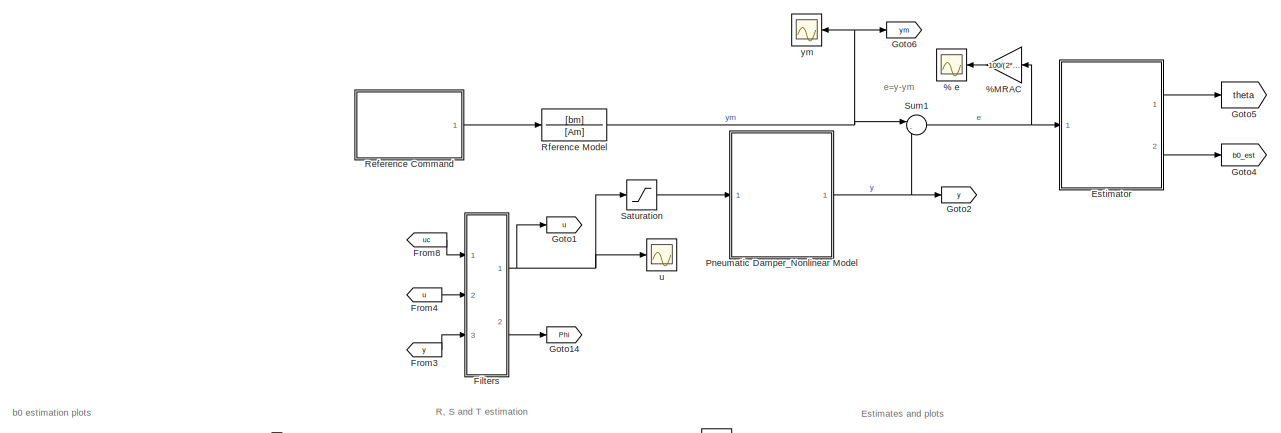
[diagram: root canvas - part 1/2, full width, top band]
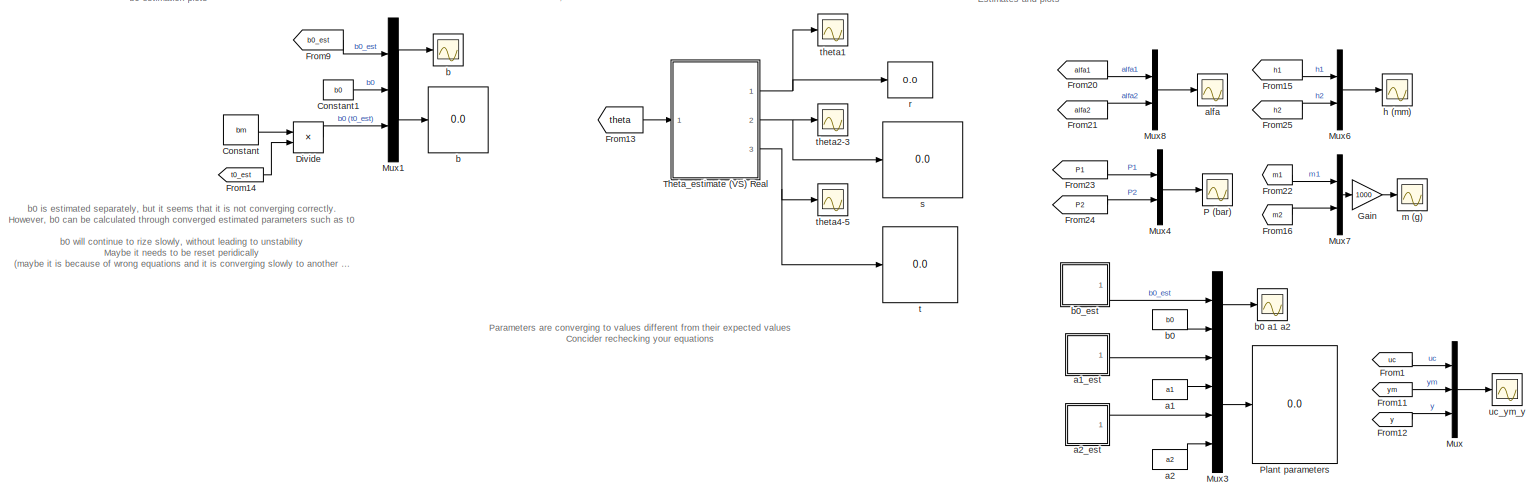
[diagram: root canvas - part 2/2, full width, bottom band]
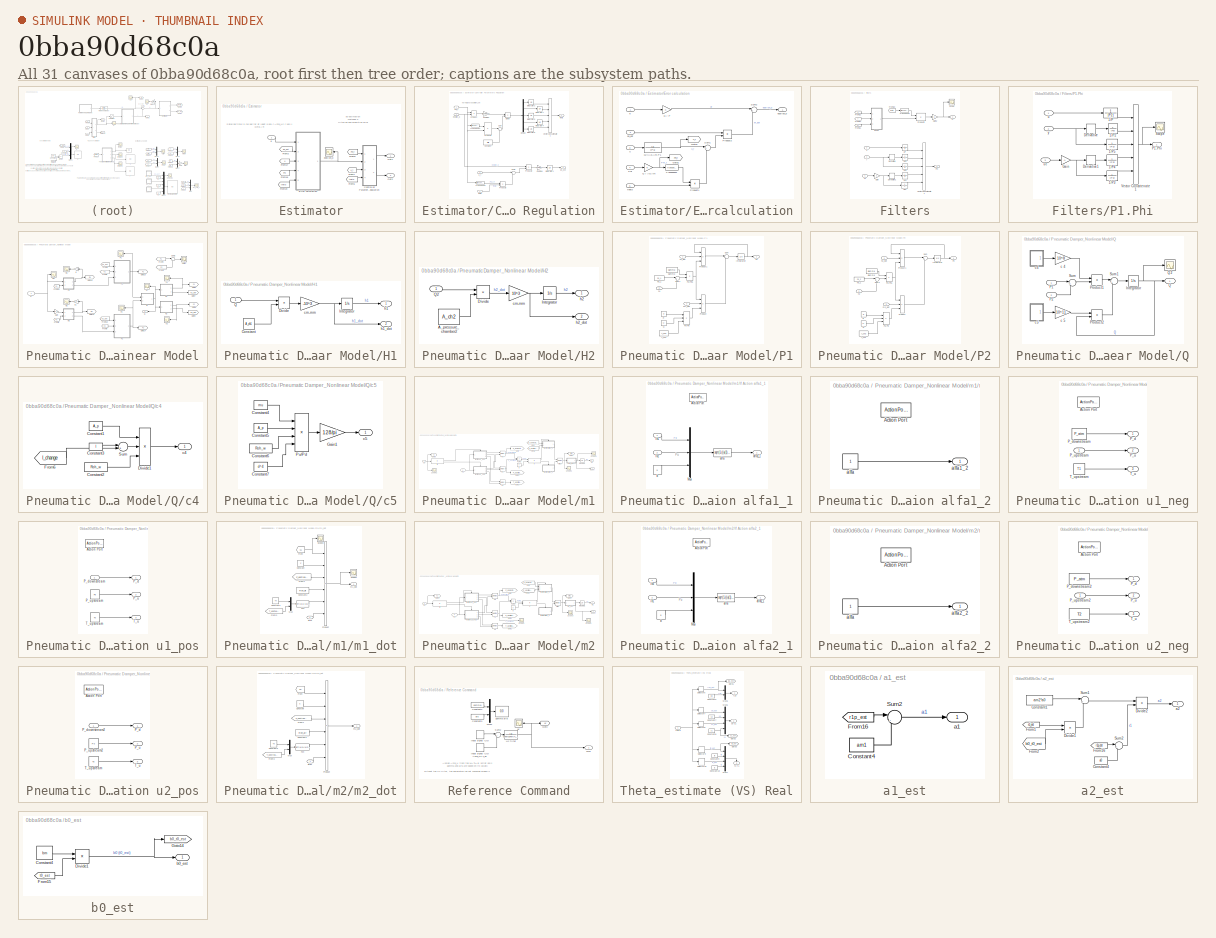
[diagram: thumbnail index - all 31 canvases of the model, root first then tree order]
MODEL slx_0bba90d68c0a
KIND model
CONFIG AbsTol = auto
CONFIG EnableMultiTasking = on
CONFIG FixedStep = auto
CONFIG MaxStep = auto
CONFIG MinStep = auto
CONFIG RelTol = 1e-3
CONFIG SampleTimeConstraint = Unconstrained
CONFIG Solver = ode45
CONFIG SolverName = ode45
CONFIG StartTime = 0.0
CONFIG StopTime = 20*T_Uc
BLOCK [Scope] % e
  Floating = off
  NumInputPorts = 1
  Ports = [1]
  ScopeSpecificationString = Simulink.scopes.TimeScopeBlockCfg('CurrentConfiguration', extmgr.ConfigurationSet(extmgr.Configuration('Core','General UI',true,'FigureColor',[0.501960784313725 0.501960784313725 0.501960784313725]),extmgr.Configuration('Core','Source UI',true),extmgr.Configuration('Sources','WiredSimulink',true,'DataLoggingVariableName','ScopeData6','DataLoggingSaveFormat','StructureWithTime','DataLoggingDecimati...<+2859ch>
BLOCK [Gain] %MRAC
  Gain = 100/(2*Amp_Uc)
  OutDataTypeStr = Inherit: Inherit via internal rule
  ParamDataTypeStr = Inherit: Inherit via internal rule
  SaturateOnIntegerOverflow = off
BLOCK [Constant] Constant
  Value = bm
BLOCK [Constant] Constant1
  Value = b0
BLOCK [Product] Divide
  InputSameDT = off
  Inputs = */
  OutDataTypeStr = Inherit: Inherit via internal rule
  Ports = [2, 1]
  RndMeth = Floor
  SaturateOnIntegerOverflow = off
BLOCK [SubSystem] Estimator
  Ports = [1, 2]
  RequestExecContextInheritance = off
BLOCK [SubSystem] Estimator/Controller Parameters Regulation
  Ports = [4, 2]
  RequestExecContextInheritance = off
BLOCK [Constant] Estimator/Controller Parameters Regulation/Constant
  Value = alfa
BLOCK [Demux] Estimator/Controller Parameters Regulation/Demux
  DisplayOption = bar
  Outputs = 5
  Ports = [1, 5]
BLOCK [Product] Estimator/Controller Parameters Regulation/Divide
  InputSameDT = off
  Inputs = */
  OutDataTypeStr = Inherit: Inherit via internal rule
  Ports = [2, 1]
  RndMeth = Floor
  SaturateOnIntegerOverflow = off
BLOCK [Integrator] Estimator/Controller Parameters Regulation/Integrator1
  InitialCondition = b0_init
  Ports = [1, 1]
BLOCK [Integrator] Estimator/Controller Parameters Regulation/Integrator2
  InitialCondition = r1p_init
  Ports = [1, 1]
BLOCK [Integrator] Estimator/Controller Parameters Regulation/Integrator4
  InitialCondition = t0_init
  Ports = [1, 1]
BLOCK [Integrator] Estimator/Controller Parameters Regulation/Integrator5
  InitialCondition = s1_init
  Ports = [1, 1]
BLOCK [Integrator] Estimator/Controller Parameters Regulation/Integrator6
  InitialCondition = t1_init
  Ports = [1, 1]
BLOCK [Integrator] Estimator/Controller Parameters Regulation/Integrator7
  InitialCondition = s0_init
  Ports = [1, 1]
BLOCK [Inport] Estimator/Controller Parameters Regulation/Phi_f
  IconDisplay = Port number
BLOCK [Product] Estimator/Controller Parameters Regulation/Product
  InputSameDT = off
  OutDataTypeStr = Inherit: Inherit via internal rule
  Ports = [2, 1]
  RndMeth = Floor
  SaturateOnIntegerOverflow = off
BLOCK [Product] Estimator/Controller Parameters Regulation/Product1
  InputSameDT = off
  Multiplication = Matrix(*)
  OutDataTypeStr = Inherit: Inherit via internal rule
  Ports = [2, 1]
  RndMeth = Floor
  SaturateOnIntegerOverflow = off
BLOCK [Product] Estimator/Controller Parameters Regulation/Product2
  InputSameDT = off
  OutDataTypeStr = Inherit: Inherit via internal rule
  Ports = [2, 1]
  RndMeth = Floor
  SaturateOnIntegerOverflow = off
BLOCK [Product] Estimator/Controller Parameters Regulation/Product3
  InputSameDT = off
  Multiplication = Matrix(*)
  OutDataTypeStr = Inherit: Inherit via internal rule
  Ports = [2, 1]
  RndMeth = Floor
  SaturateOnIntegerOverflow = off
BLOCK [Sum] Estimator/Controller Parameters Regulation/Sum
  IconShape = round
  InputSameDT = off
  Inputs = |++
  OutDataTypeStr = Inherit: Inherit via internal rule
  Ports = [2, 1]
  SaturateOnIntegerOverflow = off
BLOCK [Sum] Estimator/Controller Parameters Regulation/Sum1
  IconShape = round
  InputSameDT = off
  Inputs = |++
  OutDataTypeStr = Inherit: Inherit via internal rule
  Ports = [2, 1]
  SaturateOnIntegerOverflow = off
BLOCK [Math] Estimator/Controller Parameters Regulation/Transpose1
  Operator = transpose
  Ports = [1, 1]
BLOCK [Math] Estimator/Controller Parameters Regulation/Transpose2
  Operator = transpose
  Ports = [1, 1]
BLOCK [Concatenate] Estimator/Controller Parameters Regulation/Vector Concatenate1
  NumInputs = 5
  Ports = [5, 1]
BLOCK [Outport] Estimator/Controller Parameters Regulation/b0_est
  IconDisplay = Port number
  Port = 2
BLOCK [Inport] Estimator/Controller Parameters Regulation/epsilon_p
  IconDisplay = Port number
  Port = 2
BLOCK [Gain] Estimator/Controller Parameters Regulation/gamma1
  Gain = gamma1
  OutDataTypeStr = Inherit: Inherit via internal rule
  ParamDataTypeStr = Inherit: Inherit via internal rule
  SaturateOnIntegerOverflow = off
BLOCK [Gain] Estimator/Controller Parameters Regulation/gamma2 
  Gain = gamma2
  OutDataTypeStr = Inherit: Inherit via internal rule
  ParamDataTypeStr = Inherit: Inherit via internal rule
  SaturateOnIntegerOverflow = off
BLOCK [Outport] Estimator/Controller Parameters Regulation/theta
  IconDisplay = Port number
BLOCK [Inport] Estimator/Controller Parameters Regulation/theta 
  IconDisplay = Port number
  Port = 4
BLOCK [Inport] Estimator/Controller Parameters Regulation/u_f
  IconDisplay = Port number
  Port = 3
BLOCK [SubSystem] Estimator/Error calculation
  Ports = [5, 1]
  RequestExecContextInheritance = off
BLOCK [Goto] Estimator/Error calculation/Goto1
  GotoTag = Phi_f
  TagVisibility = global
BLOCK [Goto] Estimator/Error calculation/Goto4
  GotoTag = u_f
  TagVisibility = global
BLOCK [Inport] Estimator/Error calculation/Phi 
  IconDisplay = Port number
  Port = 4
BLOCK [Product] Estimator/Error calculation/Product1
  InputSameDT = off
  Multiplication = Matrix(*)
  OutDataTypeStr = Inherit: Inherit via internal rule
  Ports = [2, 1]
  RndMeth = Floor
  SaturateOnIntegerOverflow = off
BLOCK [Product] Estimator/Error calculation/Product2
  InputSameDT = off
  OutDataTypeStr = Inherit: Inherit via internal rule
  Ports = [2, 1]
  RndMeth = Floor
  SaturateOnIntegerOverflow = off
BLOCK [Gain] Estimator/Error calculation/Q // A0.Am 
  OutDataTypeStr = Inherit: Inherit via internal rule
  ParamDataTypeStr = Inherit: Inherit via internal rule
  SaturateOnIntegerOverflow = off
BLOCK [Gain] Estimator/Error calculation/Q // P
  OutDataTypeStr = Inherit: Inherit via internal rule
  ParamDataTypeStr = Inherit: Inherit via internal rule
  SaturateOnIntegerOverflow = off
BLOCK [TransferFcn] Estimator/Error calculation/Q//()A0.Am.P1
  Denominator = [P1]
BLOCK [Sum] Estimator/Error calculation/Sum1
  IconShape = round
  InputSameDT = off
  Inputs = |++
  OutDataTypeStr = Inherit: Inherit via internal rule
  Ports = [2, 1]
  SaturateOnIntegerOverflow = off
BLOCK [Sum] Estimator/Error calculation/Sum2
  IconShape = round
  InputSameDT = off
  Inputs = |+-
  OutDataTypeStr = Inherit: Inherit via internal rule
  Ports = [2, 1]
  SaturateOnIntegerOverflow = off
BLOCK [Math] Estimator/Error calculation/Transpose1
  Operator = transpose
  Ports = [1, 1]
BLOCK [Inport] Estimator/Error calculation/b0_est
  IconDisplay = Port number
  Port = 2
BLOCK [Inport] Estimator/Error calculation/e 
  IconDisplay = Port number
BLOCK [Outport] Estimator/Error calculation/epsilon_p
  IconDisplay = Port number
BLOCK [Inport] Estimator/Error calculation/theta
  IconDisplay = Port number
  Port = 5
BLOCK [Inport] Estimator/Error calculation/u
  IconDisplay = Port number
  Port = 3
BLOCK [From] Estimator/From17
  GotoTag = u
  TagVisibility = global
BLOCK [From] Estimator/From18
  GotoTag = Phi
  TagVisibility = global
BLOCK [From] Estimator/From19
  GotoTag = theta
  TagVisibility = global
BLOCK [From] Estimator/From2
  GotoTag = b0_est
  TagVisibility = global
BLOCK [From] Estimator/From5
  GotoTag = theta
  TagVisibility = global
BLOCK [From] Estimator/From6
  GotoTag = Phi_f
  TagVisibility = global
BLOCK [From] Estimator/From7
  GotoTag = u_f
  TagVisibility = global
BLOCK [Outport] Estimator/Out1
  IconDisplay = Port number
BLOCK [Outport] Estimator/Out2
  IconDisplay = Port number
  Port = 2
BLOCK [Inport] Estimator/e
  IconDisplay = Port number
BLOCK [Scope] Estimator/epsilon_p
  Floating = off
  NumInputPorts = 1
  Ports = [1]
  ScopeSpecificationString = Simulink.scopes.TimeScopeBlockCfg('CurrentConfiguration', extmgr.ConfigurationSet(extmgr.Configuration('Core','General UI',true),extmgr.Configuration('Core','Source UI',true),extmgr.Configuration('Sources','WiredSimulink',true,'DataLoggingVariableName','ScopeData4','DataLoggingSaveFormat','StructureWithTime','DataLoggingDecimation','1','DataLoggingDecimateData',true),extmgr.Configuration('Visuals'...<+1748ch>
BLOCK [SubSystem] Filters
  Ports = [3, 2]
  RequestExecContextInheritance = off
BLOCK [TransferFcn] Filters/1//P
  Denominator = P
  Numerator = 1
BLOCK [TransferFcn] Filters/1//P2
  Denominator = P
  Numerator = 1
BLOCK [TransferFcn] Filters/1//P3
  Denominator = P
  Numerator = 1
BLOCK [TransferFcn] Filters/1//P4
  Denominator = P
  Numerator = 1
BLOCK [TransferFcn] Filters/1//P5
  Denominator = P
  Numerator = 1
BLOCK [Derivative] Filters/Derivative
BLOCK [Derivative] Filters/Derivative1
BLOCK [From] Filters/From10
  GotoTag = theta
  TagVisibility = global
BLOCK [From] Filters/From11
  GotoTag = uc
  TagVisibility = global
BLOCK [From] Filters/From12
  GotoTag = y
  TagVisibility = global
BLOCK [From] Filters/From13
  GotoTag = u
  TagVisibility = global
BLOCK [Gain] Filters/Gain
  Gain = -1
  OutDataTypeStr = Inherit: Inherit via internal rule
  ParamDataTypeStr = Inherit: Inherit via internal rule
  SaturateOnIntegerOverflow = off
BLOCK [Gain] Filters/Gain2
  Gain = -1
  OutDataTypeStr = Inherit: Inherit via internal rule
  ParamDataTypeStr = Inherit: Inherit via internal rule
  SaturateOnIntegerOverflow = off
BLOCK [SubSystem] Filters/P1.Phi
  Ports = [3, 1]
  RequestExecContextInheritance = off
BLOCK [TransferFcn] Filters/P1.Phi/1//P
  Denominator = [P2]
  Numerator = 1
BLOCK [TransferFcn] Filters/P1.Phi/1//P2
  Denominator = [P2]
  Numerator = 1
BLOCK [TransferFcn] Filters/P1.Phi/1//P3
  Denominator = [P2]
  Numerator = 1
BLOCK [TransferFcn] Filters/P1.Phi/1//P4
  Denominator = [P2]
  Numerator = 1
BLOCK [TransferFcn] Filters/P1.Phi/1//P5
  Denominator = [P2]
  Numerator = 1
BLOCK [Derivative] Filters/P1.Phi/Derivative
BLOCK [Derivative] Filters/P1.Phi/Derivative1
BLOCK [Gain] Filters/P1.Phi/Gain
  Gain = -1
  OutDataTypeStr = Inherit: Inherit via internal rule
  ParamDataTypeStr = Inherit: Inherit via internal rule
  SaturateOnIntegerOverflow = off
BLOCK [Outport] Filters/P1.Phi/P1.Phi
  IconDisplay = Port number
BLOCK [Scope] Filters/P1.Phi/Scope
  Floating = off
  NumInputPorts = 1
  Ports = [1]
  ScopeSpecificationString = C++SS(StrPVP('Location','[188, 390, 512, 629]'),StrPVP('Open','off'),MxPVP('AxesTitles',53,'struct(''axes1'',''%<SignalLabel>'')'),MxPVP('ScopeGraphics',56,'struct(''FigureColor'',''[0.5 0.5 0.5]'',''AxesColor'',''[0 0 0]'',''AxesTickColor'',''[1 1 1]'',''LineColors'',''[1 1 0;1 0 1;0 1 1;1 0 0;0 1 0;0 0 1]'',''LineStyles'',''-|-|-|-|-|-'',''LineWidths'',''[0.5 0.5 0.5 0.5 0.5 0.5]'',''MarkerStyle...<+271ch>  <repeated x5 — deduplicated; at blocks: Scope, h2, Scope1>
BLOCK [Concatenate] Filters/P1.Phi/Vector Concatenate1
  NumInputs = 5
  Ports = [5, 1]
BLOCK [Inport] Filters/P1.Phi/u
  IconDisplay = Port number
BLOCK [Inport] Filters/P1.Phi/uc
  IconDisplay = Port number
  Port = 3
BLOCK [Inport] Filters/P1.Phi/y
  IconDisplay = Port number
  Port = 2
BLOCK [Outport] Filters/Phi
  IconDisplay = Port number
  Port = 2
BLOCK [Product] Filters/Product2
  InputSameDT = off
  Multiplication = Matrix(*)
  OutDataTypeStr = Inherit: Inherit via internal rule
  Ports = [2, 1]
  RndMeth = Floor
  SaturateOnIntegerOverflow = off
BLOCK [Scope] Filters/Scope
  Floating = off
  NumInputPorts = 1
  Ports = [1]
BLOCK [Math] Filters/Transpose1
  Operator = transpose
  Ports = [1, 1]
BLOCK [Outport] Filters/U
  IconDisplay = Port number
BLOCK [Concatenate] Filters/Vector Concatenate1
  NumInputs = 5
  Ports = [5, 1]
BLOCK [Inport] Filters/u
  IconDisplay = Port number
  Port = 2
BLOCK [Inport] Filters/uc
  IconDisplay = Port number
BLOCK [Inport] Filters/y
  IconDisplay = Port number
  Port = 3
BLOCK [From] From1
  GotoTag = uc
  TagVisibility = global
BLOCK [From] From11
  GotoTag = ym
  TagVisibility = global
BLOCK [From] From12
  GotoTag = y
  TagVisibility = global
BLOCK [From] From13
  GotoTag = theta
  TagVisibility = global
BLOCK [From] From14
  GotoTag = t0_est
  TagVisibility = global
BLOCK [From] From15
  GotoTag = h1
  TagVisibility = global
BLOCK [From] From16
  GotoTag = m2
  TagVisibility = global
BLOCK [From] From20
  GotoTag = alfa1
  TagVisibility = global
BLOCK [From] From21
  GotoTag = alfa2
  TagVisibility = global
BLOCK [From] From22
  GotoTag = m1
  TagVisibility = global
BLOCK [From] From23
  GotoTag = P1
  TagVisibility = global
BLOCK [From] From24
  GotoTag = P2
  TagVisibility = global
BLOCK [From] From25
  GotoTag = h2
  TagVisibility = global
BLOCK [From] From3
  GotoTag = y
  TagVisibility = global
BLOCK [From] From4
  GotoTag = u
  TagVisibility = global
BLOCK [From] From8
  GotoTag = uc
  TagVisibility = global
BLOCK [From] From9
  GotoTag = b0_est
  TagVisibility = global
BLOCK [Gain] Gain
  Gain = 1000
  OutDataTypeStr = Inherit: Inherit via internal rule
  ParamDataTypeStr = Inherit: Inherit via internal rule
  SaturateOnIntegerOverflow = off
BLOCK [Goto] Goto1
  GotoTag = u
  TagVisibility = global
BLOCK [Goto] Goto14
  GotoTag = Phi
  TagVisibility = global
BLOCK [Goto] Goto2
  GotoTag = y
  TagVisibility = global
BLOCK [Goto] Goto4
  GotoTag = b0_est
  TagVisibility = global
BLOCK [Goto] Goto5
  GotoTag = theta
  TagVisibility = global
BLOCK [Goto] Goto6
  GotoTag = ym
  TagVisibility = global
BLOCK [Mux] Mux
  DisplayOption = bar
  Inputs = 3
  Ports = [3, 1]
BLOCK [Mux] Mux1
  DisplayOption = bar
  Inputs = 3
  Ports = [3, 1]
BLOCK [Mux] Mux3
  DisplayOption = bar
  Inputs = 6
  Ports = [6, 1]
BLOCK [Mux] Mux4
  DisplayOption = bar
  Inputs = 2
  Ports = [2, 1]
BLOCK [Mux] Mux6
  DisplayOption = bar
  Inputs = 2
  Ports = [2, 1]
BLOCK [Mux] Mux7
  DisplayOption = bar
  Inputs = 2
  Ports = [2, 1]
BLOCK [Mux] Mux8
  DisplayOption = bar
  Inputs = 2
  Ports = [2, 1]
BLOCK [Scope] P (bar)
  Floating = off
  NumInputPorts = 1
  Ports = [1]
  ScopeSpecificationString = C++SS(StrPVP('Location','[6, 211, 432, 537]'),StrPVP('Open','off'),StrPVP('ZoomMode','yonly'),MxPVP('AxesTitles',53,'struct(''axes1'',''%<SignalLabel>'')'),MxPVP('ScopeGraphics',56,'struct(''FigureColor'',''[0.5 0.5 0.5]'',''AxesColor'',''[0 0 0]'',''AxesTickColor'',''[1 1 1]'',''LineColors'',''[1 1 0;1 0 1;0 1 1;1 0 0;0 1 0;0 0 1]'',''LineStyles'',''-|-|-|-|-|-'',''LineWidths'',''[0.5 0.5 0.5 0.5...<+345ch>
BLOCK [Display] Plant parameters
  Decimation = 1
  Ports = [1]
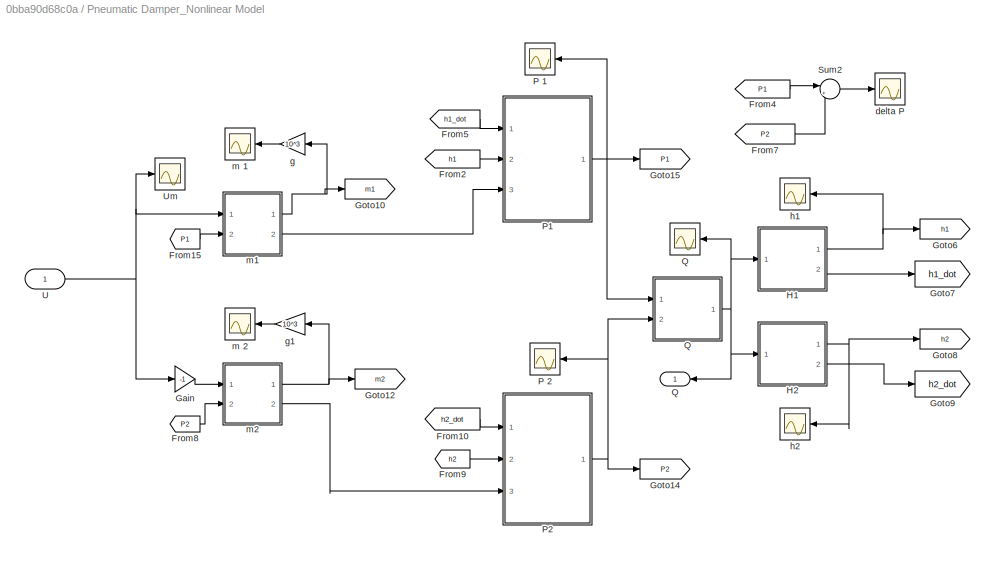
BLOCK [SubSystem] Pneumatic Damper_Nonlinear Model
  Ports = [1, 1]
  RequestExecContextInheritance = off
BLOCK [From] Pneumatic Damper_Nonlinear Model/From10
  GotoTag = h2_dot
  TagVisibility = global
BLOCK [From] Pneumatic Damper_Nonlinear Model/From15
  GotoTag = P1
  TagVisibility = global
BLOCK [From] Pneumatic Damper_Nonlinear Model/From2
  GotoTag = h1
  TagVisibility = global
BLOCK [From] Pneumatic Damper_Nonlinear Model/From4
  GotoTag = P1
  TagVisibility = global
BLOCK [From] Pneumatic Damper_Nonlinear Model/From5
  GotoTag = h1_dot
  TagVisibility = global
BLOCK [From] Pneumatic Damper_Nonlinear Model/From7
  GotoTag = P2
  TagVisibility = global
BLOCK [From] Pneumatic Damper_Nonlinear Model/From8
  GotoTag = P2
  TagVisibility = global
BLOCK [From] Pneumatic Damper_Nonlinear Model/From9
  GotoTag = h2
  TagVisibility = global
BLOCK [Gain] Pneumatic Damper_Nonlinear Model/Gain
  Gain = -1
  OutDataTypeStr = Inherit: Inherit via internal rule
  ParamDataTypeStr = Inherit: Inherit via internal rule
  SaturateOnIntegerOverflow = off
BLOCK [Goto] Pneumatic Damper_Nonlinear Model/Goto10
  GotoTag = m1
  TagVisibility = global
BLOCK [Goto] Pneumatic Damper_Nonlinear Model/Goto12
  GotoTag = m2
  TagVisibility = global
BLOCK [Goto] Pneumatic Damper_Nonlinear Model/Goto14
  GotoTag = P2
  TagVisibility = global
BLOCK [Goto] Pneumatic Damper_Nonlinear Model/Goto15
  GotoTag = P1
  TagVisibility = global
BLOCK [Goto] Pneumatic Damper_Nonlinear Model/Goto6
  GotoTag = h1
  TagVisibility = global
BLOCK [Goto] Pneumatic Damper_Nonlinear Model/Goto7
  GotoTag = h1_dot
  TagVisibility = global
BLOCK [Goto] Pneumatic Damper_Nonlinear Model/Goto8
  GotoTag = h2
  TagVisibility = global
BLOCK [Goto] Pneumatic Damper_Nonlinear Model/Goto9
  GotoTag = h2_dot
  TagVisibility = global
BLOCK [SubSystem] Pneumatic Damper_Nonlinear Model/H1
  Ports = [1, 2]
  RequestExecContextInheritance = off
BLOCK [Constant] Pneumatic Damper_Nonlinear Model/H1/Constant
  Value = A_ch1
BLOCK [Product] Pneumatic Damper_Nonlinear Model/H1/Divide
  InputSameDT = off
  Inputs = */
  OutDataTypeStr = Inherit: Inherit via internal rule
  Ports = [2, 1]
  RndMeth = Floor
  SaturateOnIntegerOverflow = off
BLOCK [Integrator] Pneumatic Damper_Nonlinear Model/H1/Integrator
  InitialCondition = h1_init
  Ports = [1, 1]
BLOCK [Inport] Pneumatic Damper_Nonlinear Model/H1/Q
  IconDisplay = Port number
BLOCK [Gain] Pneumatic Damper_Nonlinear Model/H1/cm-mm
  Gain = -10^3
  OutDataTypeStr = Inherit: Inherit via internal rule
  ParamDataTypeStr = Inherit: Inherit via internal rule
  SaturateOnIntegerOverflow = off
BLOCK [Outport] Pneumatic Damper_Nonlinear Model/H1/h1
  IconDisplay = Port number
BLOCK [Outport] Pneumatic Damper_Nonlinear Model/H1/h1_dot
  IconDisplay = Port number
  Port = 2
BLOCK [SubSystem] Pneumatic Damper_Nonlinear Model/H2
  Ports = [1, 2]
  RequestExecContextInheritance = off
BLOCK [Constant] Pneumatic Damper_Nonlinear Model/H2/A_pressure_chamber2
  Value = A_ch2
BLOCK [Product] Pneumatic Damper_Nonlinear Model/H2/Divide
  InputSameDT = off
  Inputs = */
  OutDataTypeStr = Inherit: Inherit via internal rule
  Ports = [2, 1]
  RndMeth = Floor
  SaturateOnIntegerOverflow = off
BLOCK [Integrator] Pneumatic Damper_Nonlinear Model/H2/Integrator
  InitialCondition = h2_init
  Ports = [1, 1]
BLOCK [Inport] Pneumatic Damper_Nonlinear Model/H2/Q2
  IconDisplay = Port number
BLOCK [Gain] Pneumatic Damper_Nonlinear Model/H2/cm-mm
  Gain = 10^3
  OutDataTypeStr = Inherit: Inherit via internal rule
  ParamDataTypeStr = Inherit: Inherit via internal rule
  SaturateOnIntegerOverflow = off
BLOCK [Outport] Pneumatic Damper_Nonlinear Model/H2/h2
  IconDisplay = Port number
BLOCK [Outport] Pneumatic Damper_Nonlinear Model/H2/h2_dot
  IconDisplay = Port number
  Port = 2
BLOCK [Scope] Pneumatic Damper_Nonlinear Model/P 1
  Floating = off
  NumInputPorts = 1
  Ports = [1]
  ScopeSpecificationString = C++SS(StrPVP('Location','[398, 357, 722, 595]'),StrPVP('Open','off'),MxPVP('AxesTitles',53,'struct(''axes1'',''%<SignalLabel>'')'),MxPVP('ScopeGraphics',56,'struct(''FigureColor'',''[0.5 0.5 0.5]'',''AxesColor'',''[0 0 0]'',''AxesTickColor'',''[1 1 1]'',''LineColors'',''[1 1 0;1 0 1;0 1 1;1 0 0;0 1 0;0 0 1]'',''LineStyles'',''-|-|-|-|-|-'',''LineWidths'',''[0.5 0.5 0.5 0.5 0.5 0.5]'',''MarkerStyle...<+357ch>
BLOCK [Scope] Pneumatic Damper_Nonlinear Model/P 2
  Floating = off
  NumInputPorts = 1
  Ports = [1]
  ScopeSpecificationString = C++SS(StrPVP('Location','[926, 385, 1250, 624]'),StrPVP('Open','off'),MxPVP('AxesTitles',53,'struct(''axes1'',''%<SignalLabel>'')'),MxPVP('ScopeGraphics',56,'struct(''FigureColor'',''[0.5 0.5 0.5]'',''AxesColor'',''[0 0 0]'',''AxesTickColor'',''[1 1 1]'',''LineColors'',''[1 1 0;1 0 1;0 1 1;1 0 0;0 1 0;0 0 1]'',''LineStyles'',''-|-|-|-|-|-'',''LineWidths'',''[0.5 0.5 0.5 0.5 0.5 0.5]'',''MarkerStyl...<+272ch>
BLOCK [SubSystem] Pneumatic Damper_Nonlinear Model/P1
  Ports = [3, 1]
  RequestExecContextInheritance = off
BLOCK [Constant] Pneumatic Damper_Nonlinear Model/P1/A_ch1
  Value = A_ch1
BLOCK [Constant] Pneumatic Damper_Nonlinear Model/P1/Gamma
  Value = Gamma
BLOCK [Integrator] Pneumatic Damper_Nonlinear Model/P1/Integrator
  InitialCondition = P2_init
  Ports = [1, 1]
BLOCK [Outport] Pneumatic Damper_Nonlinear Model/P1/P1
  IconDisplay = Port number
BLOCK [Product] Pneumatic Damper_Nonlinear Model/P1/Product
  InputSameDT = off
  Inputs = 3
  OutDataTypeStr = Inherit: Inherit via internal rule
  Ports = [3, 1]
  RndMeth = Floor
  SaturateOnIntegerOverflow = off
BLOCK [Product] Pneumatic Damper_Nonlinear Model/P1/Product1
  InputSameDT = off
  Inputs = 3
  OutDataTypeStr = Inherit: Inherit via internal rule
  Ports = [3, 1]
  RndMeth = Floor
  SaturateOnIntegerOverflow = off
BLOCK [Product] Pneumatic Damper_Nonlinear Model/P1/Pu//Pd
  InputSameDT = off
  Inputs = **/
  OutDataTypeStr = Inherit: Inherit via internal rule
  Ports = [3, 1]
  RndMeth = Floor
  SaturateOnIntegerOverflow = off
BLOCK [Product] Pneumatic Damper_Nonlinear Model/P1/Pu//Pd1
  InputSameDT = off
  Inputs = */
  OutDataTypeStr = Inherit: Inherit via internal rule
  Ports = [2, 1]
  RndMeth = Floor
  SaturateOnIntegerOverflow = off
BLOCK [Constant] Pneumatic Damper_Nonlinear Model/P1/R
  Value = R
BLOCK [Sum] Pneumatic Damper_Nonlinear Model/P1/Sum
  IconShape = round
  InputSameDT = off
  Inputs = |++
  OutDataTypeStr = Inherit: Inherit via internal rule
  Ports = [2, 1]
  SaturateOnIntegerOverflow = off
BLOCK [Sum] Pneumatic Damper_Nonlinear Model/P1/Sum1
  IconShape = round
  InputSameDT = off
  Inputs = |+-
  OutDataTypeStr = Inherit: Inherit via internal rule
  Ports = [2, 1]
  SaturateOnIntegerOverflow = off
BLOCK [Constant] Pneumatic Damper_Nonlinear Model/P1/Tf
  Value = Tf
BLOCK [Constant] Pneumatic Damper_Nonlinear Model/P1/h0_1
  Value = h0_1
BLOCK [Inport] Pneumatic Damper_Nonlinear Model/P1/h1
  IconDisplay = Port number
  Port = 2
BLOCK [Inport] Pneumatic Damper_Nonlinear Model/P1/h1_dot
  IconDisplay = Port number
BLOCK [Inport] Pneumatic Damper_Nonlinear Model/P1/m1_dot
  IconDisplay = Port number
  Port = 3
BLOCK [SubSystem] Pneumatic Damper_Nonlinear Model/P2
  Ports = [3, 1]
  RequestExecContextInheritance = off
BLOCK [Constant] Pneumatic Damper_Nonlinear Model/P2/A_ch1
  Value = A_ch2
BLOCK [Constant] Pneumatic Damper_Nonlinear Model/P2/Gamma
  Value = Gamma
BLOCK [Integrator] Pneumatic Damper_Nonlinear Model/P2/Integrator
  InitialCondition = P2_init
  Ports = [1, 1]
BLOCK [Outport] Pneumatic Damper_Nonlinear Model/P2/P2
  IconDisplay = Port number
BLOCK [Product] Pneumatic Damper_Nonlinear Model/P2/Product
  InputSameDT = off
  Inputs = 3
  OutDataTypeStr = Inherit: Inherit via internal rule
  Ports = [3, 1]
  RndMeth = Floor
  SaturateOnIntegerOverflow = off
BLOCK [Product] Pneumatic Damper_Nonlinear Model/P2/Product1
  InputSameDT = off
  Inputs = 3
  OutDataTypeStr = Inherit: Inherit via internal rule
  Ports = [3, 1]
  RndMeth = Floor
  SaturateOnIntegerOverflow = off
BLOCK [Product] Pneumatic Damper_Nonlinear Model/P2/Pu//Pd
  InputSameDT = off
  Inputs = **/
  OutDataTypeStr = Inherit: Inherit via internal rule
  Ports = [3, 1]
  RndMeth = Floor
  SaturateOnIntegerOverflow = off
BLOCK [Product] Pneumatic Damper_Nonlinear Model/P2/Pu//Pd1
  InputSameDT = off
  Inputs = */
  OutDataTypeStr = Inherit: Inherit via internal rule
  Ports = [2, 1]
  RndMeth = Floor
  SaturateOnIntegerOverflow = off
BLOCK [Constant] Pneumatic Damper_Nonlinear Model/P2/R
  Value = R
BLOCK [Sum] Pneumatic Damper_Nonlinear Model/P2/Sum
  IconShape = round
  InputSameDT = off
  Inputs = |++
  OutDataTypeStr = Inherit: Inherit via internal rule
  Ports = [2, 1]
  SaturateOnIntegerOverflow = off
BLOCK [Sum] Pneumatic Damper_Nonlinear Model/P2/Sum1
  IconShape = round
  InputSameDT = off
  Inputs = |+-
  OutDataTypeStr = Inherit: Inherit via internal rule
  Ports = [2, 1]
  SaturateOnIntegerOverflow = off
BLOCK [Constant] Pneumatic Damper_Nonlinear Model/P2/Tf
  Value = Tf
BLOCK [Constant] Pneumatic Damper_Nonlinear Model/P2/h0_1
  Value = h0_2
BLOCK [Inport] Pneumatic Damper_Nonlinear Model/P2/h2
  IconDisplay = Port number
  Port = 2
BLOCK [Inport] Pneumatic Damper_Nonlinear Model/P2/h2_dot
  IconDisplay = Port number
BLOCK [Inport] Pneumatic Damper_Nonlinear Model/P2/m2_dot
  IconDisplay = Port number
  Port = 3
BLOCK [SubSystem] Pneumatic Damper_Nonlinear Model/Q
  Ports = [2, 1]
  RequestExecContextInheritance = off
BLOCK [Scope] Pneumatic Damper_Nonlinear Model/Q 
  Floating = off
  NumInputPorts = 1
  Ports = [1]
  ScopeSpecificationString = C++SS(StrPVP('Location','[130, 497, 556, 729]'),StrPVP('Open','off'),MxPVP('AxesTitles',53,'struct(''axes1'',''%<SignalLabel>'')'),MxPVP('ScopeGraphics',56,'struct(''FigureColor'',''[0.5 0.5 0.5]'',''AxesColor'',''[0 0 0]'',''AxesTickColor'',''[1 1 1]'',''LineColors'',''[1 1 0;1 0 1;0 1 1;1 0 0;0 1 0;0 0 1]'',''LineStyles'',''-|-|-|-|-|-'',''LineWidths'',''[0.5 0.5 0.5 0.5 0.5 0.5]'',''MarkerStyle...<+271ch>
BLOCK [Outport] Pneumatic Damper_Nonlinear Model/Q  
  IconDisplay = Port number
BLOCK [Integrator] Pneumatic Damper_Nonlinear Model/Q/Integrator
  Ports = [1, 1]
BLOCK [Inport] Pneumatic Damper_Nonlinear Model/Q/P1
  IconDisplay = Port number
BLOCK [Inport] Pneumatic Damper_Nonlinear Model/Q/P2
  IconDisplay = Port number
  Port = 2
BLOCK [Product] Pneumatic Damper_Nonlinear Model/Q/Product1
  InputSameDT = off
  OutDataTypeStr = Inherit: Inherit via internal rule
  Ports = [2, 1]
  RndMeth = Floor
  SaturateOnIntegerOverflow = off
BLOCK [Product] Pneumatic Damper_Nonlinear Model/Q/Product2
  InputSameDT = off
  OutDataTypeStr = Inherit: Inherit via internal rule
  Ports = [2, 1]
  RndMeth = Floor
  SaturateOnIntegerOverflow = off
BLOCK [Outport] Pneumatic Damper_Nonlinear Model/Q/Q
  IconDisplay = Port number
BLOCK [Scope] Pneumatic Damper_Nonlinear Model/Q/Q 2
  Floating = off
  NumInputPorts = 1
  Ports = [1]
  ScopeSpecificationString = C++SS(StrPVP('Location','[188, 390, 512, 629]'),StrPVP('Open','off'),MxPVP('AxesTitles',53,'struct(''axes1'',''%<SignalLabel>'')'),MxPVP('ScopeGraphics',56,'struct(''FigureColor'',''[0.5 0.5 0.5]'',''AxesColor'',''[0 0 0]'',''AxesTickColor'',''[1 1 1]'',''LineColors'',''[1 1 0;1 0 1;0 1 1;1 0 0;0 1 0;0 0 1]'',''LineStyles'',''-|-|-|-|-|-'',''LineWidths'',''[0.5 0.5 0.5 0.5 0.5 0.5]'',''MarkerStyle...<+272ch>  <repeated x5 — deduplicated; at blocks: Q 2, Scope2, Scope3>
BLOCK [Sum] Pneumatic Damper_Nonlinear Model/Q/Sum
  IconShape = round
  InputSameDT = off
  Inputs = |+-
  OutDataTypeStr = Inherit: Inherit via internal rule
  Ports = [2, 1]
  SaturateOnIntegerOverflow = off
BLOCK [Sum] Pneumatic Damper_Nonlinear Model/Q/Sum1
  IconShape = round
  InputSameDT = off
  Inputs = |+-
  OutDataTypeStr = Inherit: Inherit via internal rule
  Ports = [2, 1]
  SaturateOnIntegerOverflow = off
BLOCK [Gain] Pneumatic Damper_Nonlinear Model/Q/c 4
  Gain = 10^8
  OutDataTypeStr = Inherit: Inherit via internal rule
  ParamDataTypeStr = Inherit: Inherit via internal rule
  SaturateOnIntegerOverflow = off
BLOCK [Gain] Pneumatic Damper_Nonlinear Model/Q/c 5
  Gain = 10^11
  OutDataTypeStr = Inherit: Inherit via internal rule
  ParamDataTypeStr = Inherit: Inherit via internal rule
  SaturateOnIntegerOverflow = off
BLOCK [SubSystem] Pneumatic Damper_Nonlinear Model/Q/c4
  Ports = [0, 1]
  RequestExecContextInheritance = off
BLOCK [Constant] Pneumatic Damper_Nonlinear Model/Q/c4/Constant1
  Value = A_p
BLOCK [Constant] Pneumatic Damper_Nonlinear Model/Q/c4/Constant2
  Value = Roh_w
BLOCK [Constant] Pneumatic Damper_Nonlinear Model/Q/c4/Constant3
  Value = l
BLOCK [Product] Pneumatic Damper_Nonlinear Model/Q/c4/Divide1
  InputSameDT = off
  Inputs = *//
  OutDataTypeStr = Inherit: Inherit via internal rule
  Ports = [3, 1]
  RndMeth = Floor
  SaturateOnIntegerOverflow = off
BLOCK [From] Pneumatic Damper_Nonlinear Model/Q/c4/From6
  GotoTag = l_change
BLOCK [Sum] Pneumatic Damper_Nonlinear Model/Q/c4/Sum
  IconShape = round
  InputSameDT = off
  Inputs = |++
  OutDataTypeStr = Inherit: Inherit via internal rule
  Ports = [2, 1]
  SaturateOnIntegerOverflow = off
BLOCK [Outport] Pneumatic Damper_Nonlinear Model/Q/c4/c4
  IconDisplay = Port number
BLOCK [SubSystem] Pneumatic Damper_Nonlinear Model/Q/c5
  Ports = [0, 1]
  RequestExecContextInheritance = off
BLOCK [Constant] Pneumatic Damper_Nonlinear Model/Q/c5/Constant4
  Value = mu
BLOCK [Constant] Pneumatic Damper_Nonlinear Model/Q/c5/Constant5
  Value = A_p
BLOCK [Constant] Pneumatic Damper_Nonlinear Model/Q/c5/Constant6
  Value = Roh_w
BLOCK [Constant] Pneumatic Damper_Nonlinear Model/Q/c5/Constant7
  Value = d^4
BLOCK [Gain] Pneumatic Damper_Nonlinear Model/Q/c5/Gain1
  Gain = 128/pi
  OutDataTypeStr = Inherit: Inherit via internal rule
  ParamDataTypeStr = Inherit: Inherit via internal rule
  SaturateOnIntegerOverflow = off
BLOCK [Product] Pneumatic Damper_Nonlinear Model/Q/c5/Pu//Pd
  InputSameDT = off
  Inputs = **//
  OutDataTypeStr = Inherit: Inherit via internal rule
  Ports = [4, 1]
  RndMeth = Floor
  SaturateOnIntegerOverflow = off
BLOCK [Outport] Pneumatic Damper_Nonlinear Model/Q/c5/c5
  IconDisplay = Port number
BLOCK [Sum] Pneumatic Damper_Nonlinear Model/Sum2
  IconShape = round
  InputSameDT = off
  Inputs = |+-
  OutDataTypeStr = Inherit: Inherit via internal rule
  Ports = [2, 1]
  SaturateOnIntegerOverflow = off
BLOCK [Inport] Pneumatic Damper_Nonlinear Model/U
  IconDisplay = Port number
BLOCK [Scope] Pneumatic Damper_Nonlinear Model/Um
  Floating = off
  NumInputPorts = 1
  Ports = [1]
  ScopeSpecificationString = C++SS(StrPVP('Location','[121, 547, 445, 786]'),StrPVP('Open','off'),MxPVP('AxesTitles',53,'struct(''axes1'',''%<SignalLabel>'')'),MxPVP('ScopeGraphics',56,'struct(''FigureColor'',''[0.5 0.5 0.5]'',''AxesColor'',''[0 0 0]'',''AxesTickColor'',''[1 1 1]'',''LineColors'',''[1 1 0;1 0 1;0 1 1;1 0 0;0 1 0;0 0 1]'',''LineStyles'',''-|-|-|-|-|-'',''LineWidths'',''[0.5 0.5 0.5 0.5 0.5 0.5]'',''MarkerStyle...<+239ch>
BLOCK [Scope] Pneumatic Damper_Nonlinear Model/delta P
  Floating = off
  NumInputPorts = 1
  Ports = [1]
  ScopeSpecificationString = C++SS(StrPVP('Location','[6, 211, 432, 537]'),StrPVP('Open','off'),MxPVP('AxesTitles',53,'struct(''axes1'',''%<SignalLabel>'')'),MxPVP('ScopeGraphics',56,'struct(''FigureColor'',''[0.5 0.5 0.5]'',''AxesColor'',''[0 0 0]'',''AxesTickColor'',''[1 1 1]'',''LineColors'',''[1 1 0;1 0 1;0 1 1;1 0 0;0 1 0;0 0 1]'',''LineStyles'',''-|-|-|-|-|-'',''LineWidths'',''[0.5 0.5 0.5 0.5 0.5 0.5]'',''MarkerStyles'...<+270ch>
BLOCK [Gain] Pneumatic Damper_Nonlinear Model/g
  Gain = 10^3
  OutDataTypeStr = Inherit: Inherit via internal rule
  ParamDataTypeStr = Inherit: Inherit via internal rule
  SaturateOnIntegerOverflow = off
BLOCK [Gain] Pneumatic Damper_Nonlinear Model/g1
  Gain = 10^3
  OutDataTypeStr = Inherit: Inherit via internal rule
  ParamDataTypeStr = Inherit: Inherit via internal rule
  SaturateOnIntegerOverflow = off
BLOCK [Scope] Pneumatic Damper_Nonlinear Model/h1
  Floating = off
  NumInputPorts = 1
  Ports = [1]
  ScopeSpecificationString = C++SS(StrPVP('Location','[6, 477, 435, 716]'),StrPVP('Open','off'),MxPVP('AxesTitles',53,'struct(''axes1'',''%<SignalLabel>'')'),MxPVP('ScopeGraphics',56,'struct(''FigureColor'',''[0.5 0.5 0.5]'',''AxesColor'',''[0 0 0]'',''AxesTickColor'',''[1 1 1]'',''LineColors'',''[1 1 0;1 0 1;0 1 1;1 0 0;0 1 0;0 0 1]'',''LineStyles'',''-|-|-|-|-|-'',''LineWidths'',''[0.5 0.5 0.5 0.5 0.5 0.5]'',''MarkerStyles'...<+269ch>
BLOCK [Scope] Pneumatic Damper_Nonlinear Model/h2
  Floating = off
  NumInputPorts = 1
  Ports = [1]
BLOCK [Scope] Pneumatic Damper_Nonlinear Model/m 1
  Floating = off
  NumInputPorts = 1
  Ports = [1]
  ScopeSpecificationString = C++SS(StrPVP('Location','[68, 390, 392, 629]'),StrPVP('Open','off'),MxPVP('AxesTitles',53,'struct(''axes1'',''%<SignalLabel>'')'),MxPVP('ScopeGraphics',56,'struct(''FigureColor'',''[0.5 0.5 0.5]'',''AxesColor'',''[0 0 0]'',''AxesTickColor'',''[1 1 1]'',''LineColors'',''[1 1 0;1 0 1;0 1 1;1 0 0;0 1 0;0 0 1]'',''LineStyles'',''-|-|-|-|-|-'',''LineWidths'',''[0.5 0.5 0.5 0.5 0.5 0.5]'',''MarkerStyles...<+270ch>
BLOCK [Scope] Pneumatic Damper_Nonlinear Model/m 2
  Floating = off
  NumInputPorts = 1
  Ports = [1]
  ScopeSpecificationString = C++SS(StrPVP('Location','[46, 400, 370, 639]'),StrPVP('Open','off'),MxPVP('AxesTitles',53,'struct(''axes1'',''%<SignalLabel>'')'),MxPVP('ScopeGraphics',56,'struct(''FigureColor'',''[0.5 0.5 0.5]'',''AxesColor'',''[0 0 0]'',''AxesTickColor'',''[1 1 1]'',''LineColors'',''[1 1 0;1 0 1;0 1 1;1 0 0;0 1 0;0 0 1]'',''LineStyles'',''-|-|-|-|-|-'',''LineWidths'',''[0.5 0.5 0.5 0.5 0.5 0.5]'',''MarkerStyles...<+270ch>
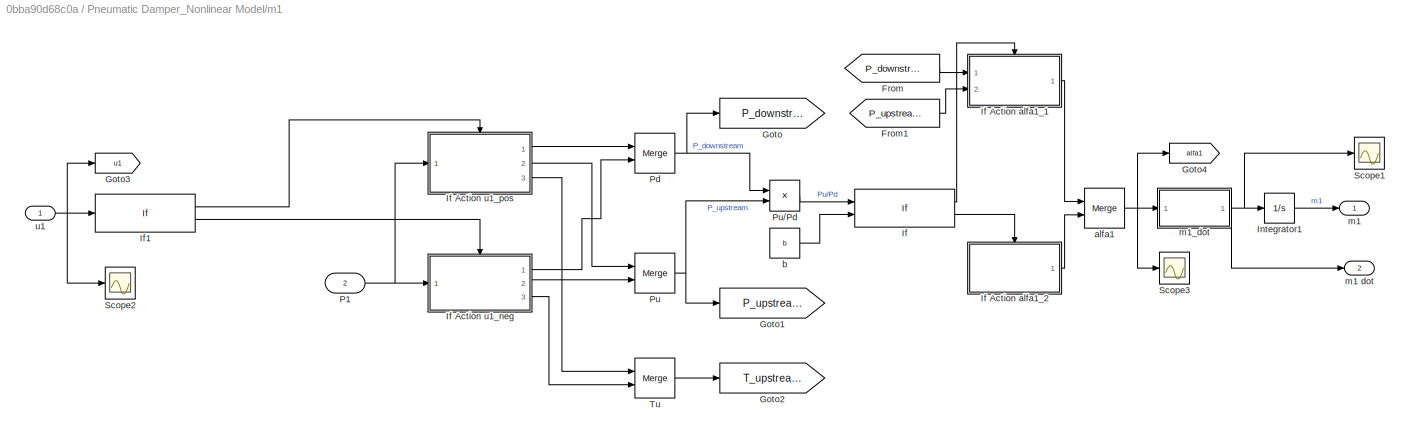
BLOCK [SubSystem] Pneumatic Damper_Nonlinear Model/m1
  Ports = [2, 2]
  RequestExecContextInheritance = off
BLOCK [From] Pneumatic Damper_Nonlinear Model/m1/From
  GotoTag = P_downstream_1
  TagVisibility = global
BLOCK [From] Pneumatic Damper_Nonlinear Model/m1/From1
  GotoTag = P_upstream_1
  TagVisibility = global
BLOCK [Goto] Pneumatic Damper_Nonlinear Model/m1/Goto
  GotoTag = P_downstream_1
  TagVisibility = global
BLOCK [Goto] Pneumatic Damper_Nonlinear Model/m1/Goto1
  GotoTag = P_upstream_1
  TagVisibility = global
BLOCK [Goto] Pneumatic Damper_Nonlinear Model/m1/Goto2
  GotoTag = T_upstream_1
  TagVisibility = global
BLOCK [Goto] Pneumatic Damper_Nonlinear Model/m1/Goto3
  GotoTag = u1
  TagVisibility = global
BLOCK [Goto] Pneumatic Damper_Nonlinear Model/m1/Goto4
  GotoTag = alfa1
  TagVisibility = global
BLOCK [If] Pneumatic Damper_Nonlinear Model/m1/If
  IfExpression = u1 > u2
  NumInputs = 2
  Ports = [2, 2]
BLOCK [SubSystem] Pneumatic Damper_Nonlinear Model/m1/If Action alfa1_1
  Ports = [2, 1, 0, 0, 0, 0, 0, 1]
  RequestExecContextInheritance = off
  TreatAsAtomicUnit = on
BLOCK [ActionPort] Pneumatic Damper_Nonlinear Model/m1/If Action alfa1_1/Action Port
  ActionType = then
BLOCK [Inport] Pneumatic Damper_Nonlinear Model/m1/If Action alfa1_1/In1
  IconDisplay = Port number
BLOCK [Inport] Pneumatic Damper_Nonlinear Model/m1/If Action alfa1_1/In2
  IconDisplay = Port number
  Port = 2
BLOCK [Mux] Pneumatic Damper_Nonlinear Model/m1/If Action alfa1_1/Mux
  DisplayOption = bar
  Inputs = 3
  Ports = [3, 1]
BLOCK [Fcn] Pneumatic Damper_Nonlinear Model/m1/If Action alfa1_1/alfa
  Expr = sqrt(1-((u(1)/u(2)-u(3))/(1-u(3)))^2)
BLOCK [Outport] Pneumatic Damper_Nonlinear Model/m1/If Action alfa1_1/alfa1_1
  IconDisplay = Port number
BLOCK [Constant] Pneumatic Damper_Nonlinear Model/m1/If Action alfa1_1/b
  Value = b
BLOCK [SubSystem] Pneumatic Damper_Nonlinear Model/m1/If Action alfa1_2
  Ports = [0, 1, 0, 0, 0, 0, 0, 1]
  RequestExecContextInheritance = off
  TreatAsAtomicUnit = on
BLOCK [ActionPort] Pneumatic Damper_Nonlinear Model/m1/If Action alfa1_2/Action Port
  ActionType = else
BLOCK [Constant] Pneumatic Damper_Nonlinear Model/m1/If Action alfa1_2/alfa
BLOCK [Outport] Pneumatic Damper_Nonlinear Model/m1/If Action alfa1_2/alfa1_2
  IconDisplay = Port number
BLOCK [SubSystem] Pneumatic Damper_Nonlinear Model/m1/If Action u1_neg
  Ports = [1, 3, 0, 0, 0, 0, 0, 1]
  RequestExecContextInheritance = off
  TreatAsAtomicUnit = on
BLOCK [ActionPort] Pneumatic Damper_Nonlinear Model/m1/If Action u1_neg/Action Port
  ActionType = else
BLOCK [Outport] Pneumatic Damper_Nonlinear Model/m1/If Action u1_neg/P_d
  IconDisplay = Port number
BLOCK [Constant] Pneumatic Damper_Nonlinear Model/m1/If Action u1_neg/P_downstream
  Value = P_atm
BLOCK [Outport] Pneumatic Damper_Nonlinear Model/m1/If Action u1_neg/P_u
  IconDisplay = Port number
  Port = 2
BLOCK [Inport] Pneumatic Damper_Nonlinear Model/m1/If Action u1_neg/P_upstream
  IconDisplay = Port number
BLOCK [Outport] Pneumatic Damper_Nonlinear Model/m1/If Action u1_neg/T_u
  IconDisplay = Port number
  Port = 3
BLOCK [Constant] Pneumatic Damper_Nonlinear Model/m1/If Action u1_neg/T_upstream
  Value = T1
BLOCK [SubSystem] Pneumatic Damper_Nonlinear Model/m1/If Action u1_pos
  Ports = [1, 3, 0, 0, 0, 0, 0, 1]
  RequestExecContextInheritance = off
  TreatAsAtomicUnit = on
BLOCK [ActionPort] Pneumatic Damper_Nonlinear Model/m1/If Action u1_pos/Action Port
  ActionType = then
BLOCK [Outport] Pneumatic Damper_Nonlinear Model/m1/If Action u1_pos/P_d
  IconDisplay = Port number
BLOCK [Inport] Pneumatic Damper_Nonlinear Model/m1/If Action u1_pos/P_downstream
  IconDisplay = Port number
BLOCK [Outport] Pneumatic Damper_Nonlinear Model/m1/If Action u1_pos/P_u
  IconDisplay = Port number
  Port = 2
BLOCK [Constant] Pneumatic Damper_Nonlinear Model/m1/If Action u1_pos/P_upstream
  Value = Ps
BLOCK [Outport] Pneumatic Damper_Nonlinear Model/m1/If Action u1_pos/T_u
  IconDisplay = Port number
  Port = 3
BLOCK [Constant] Pneumatic Damper_Nonlinear Model/m1/If Action u1_pos/T_upstream
  Value = Ts
BLOCK [If] Pneumatic Damper_Nonlinear Model/m1/If1
  Ports = [1, 2]
BLOCK [Integrator] Pneumatic Damper_Nonlinear Model/m1/Integrator1
  Ports = [1, 1]
BLOCK [Inport] Pneumatic Damper_Nonlinear Model/m1/P1
  IconDisplay = Port number
  Port = 2
BLOCK [Merge] Pneumatic Damper_Nonlinear Model/m1/Pd
  Ports = [2, 1]
BLOCK [Merge] Pneumatic Damper_Nonlinear Model/m1/Pu
  Ports = [2, 1]
BLOCK [Product] Pneumatic Damper_Nonlinear Model/m1/Pu//Pd
  InputSameDT = off
  Inputs = */
  OutDataTypeStr = Inherit: Inherit via internal rule
  Ports = [2, 1]
  RndMeth = Floor
  SaturateOnIntegerOverflow = off
BLOCK [Scope] Pneumatic Damper_Nonlinear Model/m1/Scope1
  Floating = off
  NumInputPorts = 1
  Ports = [1]
BLOCK [Scope] Pneumatic Damper_Nonlinear Model/m1/Scope2
  Floating = off
  NumInputPorts = 1
  Ports = [1]
BLOCK [Scope] Pneumatic Damper_Nonlinear Model/m1/Scope3
  Floating = off
  NumInputPorts = 1
  Ports = [1]
BLOCK [Merge] Pneumatic Damper_Nonlinear Model/m1/Tu
  Ports = [2, 1]
BLOCK [Merge] Pneumatic Damper_Nonlinear Model/m1/alfa1
  Ports = [2, 1]
BLOCK [Constant] Pneumatic Damper_Nonlinear Model/m1/b
  Value = b
BLOCK [Outport] Pneumatic Damper_Nonlinear Model/m1/m1
  IconDisplay = Port number
BLOCK [Outport] Pneumatic Damper_Nonlinear Model/m1/m1 dot
  IconDisplay = Port number
  Port = 2
BLOCK [SubSystem] Pneumatic Damper_Nonlinear Model/m1/m1_dot
  Ports = [1, 1]
  RequestExecContextInheritance = off
BLOCK [Constant] Pneumatic Damper_Nonlinear Model/m1/m1_dot/Constant
  Value = C
BLOCK [Constant] Pneumatic Damper_Nonlinear Model/m1/m1_dot/Constant2
  Value = Roh_air
BLOCK [Constant] Pneumatic Damper_Nonlinear Model/m1/m1_dot/Constant3
  Value = T0
BLOCK [Fcn] Pneumatic Damper_Nonlinear Model/m1/m1_dot/Fcn
  Expr = sqrt(u(1)/u(2))
BLOCK [From] Pneumatic Damper_Nonlinear Model/m1/m1_dot/From
  GotoTag = u1
  TagVisibility = global
BLOCK [From] Pneumatic Damper_Nonlinear Model/m1/m1_dot/From1
  GotoTag = P_upstream_1
  TagVisibility = global
BLOCK [From] Pneumatic Damper_Nonlinear Model/m1/m1_dot/From3
  GotoTag = T_upstream_1
  TagVisibility = global
BLOCK [Mux] Pneumatic Damper_Nonlinear Model/m1/m1_dot/Mux
  DisplayOption = bar
  Inputs = 2
  Ports = [2, 1]
BLOCK [Product] Pneumatic Damper_Nonlinear Model/m1/m1_dot/Product
  InputSameDT = off
  Inputs = 6
  OutDataTypeStr = Inherit: Inherit via internal rule
  Ports = [6, 1]
  RndMeth = Floor
  SaturateOnIntegerOverflow = off
BLOCK [Scope] Pneumatic Damper_Nonlinear Model/m1/m1_dot/Scope1
  Floating = off
  NumInputPorts = 1
  Ports = [1]
BLOCK [Scope] Pneumatic Damper_Nonlinear Model/m1/m1_dot/Scope2
  Floating = off
  NumInputPorts = 1
  Ports = [1]
BLOCK [Inport] Pneumatic Damper_Nonlinear Model/m1/m1_dot/alfa1
  IconDisplay = Port number
BLOCK [Outport] Pneumatic Damper_Nonlinear Model/m1/m1_dot/m1_dot
  IconDisplay = Port number
BLOCK [Inport] Pneumatic Damper_Nonlinear Model/m1/u1
  IconDisplay = Port number
BLOCK [SubSystem] Pneumatic Damper_Nonlinear Model/m2
  Ports = [2, 2]
  RequestExecContextInheritance = off
BLOCK [From] Pneumatic Damper_Nonlinear Model/m2/From
  GotoTag = P_downstream_2
  TagVisibility = global
BLOCK [From] Pneumatic Damper_Nonlinear Model/m2/From1
  GotoTag = P_upstream_2
  TagVisibility = global
BLOCK [Goto] Pneumatic Damper_Nonlinear Model/m2/Goto
  GotoTag = P_downstream_2
  TagVisibility = global
BLOCK [Goto] Pneumatic Damper_Nonlinear Model/m2/Goto1
  GotoTag = P_upstream_2
  TagVisibility = global
BLOCK [Goto] Pneumatic Damper_Nonlinear Model/m2/Goto2
  GotoTag = T_upstream_2
  TagVisibility = global
BLOCK [Goto] Pneumatic Damper_Nonlinear Model/m2/Goto3
  GotoTag = u2
  TagVisibility = global
BLOCK [Goto] Pneumatic Damper_Nonlinear Model/m2/Goto4
  GotoTag = alfa2
  TagVisibility = global
BLOCK [If] Pneumatic Damper_Nonlinear Model/m2/If
  IfExpression = u1 > u2
  NumInputs = 2
  Ports = [2, 2]
BLOCK [SubSystem] Pneumatic Damper_Nonlinear Model/m2/If Action alfa2_1
  Ports = [2, 1, 0, 0, 0, 0, 0, 1]
  RequestExecContextInheritance = off
  TreatAsAtomicUnit = on
BLOCK [ActionPort] Pneumatic Damper_Nonlinear Model/m2/If Action alfa2_1/Action Port
  ActionType = then
BLOCK [Mux] Pneumatic Damper_Nonlinear Model/m2/If Action alfa2_1/Mux
  DisplayOption = bar
  Inputs = 3
  Ports = [3, 1]
BLOCK [Fcn] Pneumatic Damper_Nonlinear Model/m2/If Action alfa2_1/alfa
  Expr = sqrt(1-((u(1)/u(2)-u(3))/(1-u(3)))^2)
BLOCK [Outport] Pneumatic Damper_Nonlinear Model/m2/If Action alfa2_1/alfa2_1
  IconDisplay = Port number
BLOCK [Constant] Pneumatic Damper_Nonlinear Model/m2/If Action alfa2_1/b
  Value = b
BLOCK [Inport] Pneumatic Damper_Nonlinear Model/m2/If Action alfa2_1/in1
  IconDisplay = Port number
  Port = 2
BLOCK [Inport] Pneumatic Damper_Nonlinear Model/m2/If Action alfa2_1/in3
  IconDisplay = Port number
BLOCK [SubSystem] Pneumatic Damper_Nonlinear Model/m2/If Action alfa2_2
  Ports = [0, 1, 0, 0, 0, 0, 0, 1]
  RequestExecContextInheritance = off
  TreatAsAtomicUnit = on
BLOCK [ActionPort] Pneumatic Damper_Nonlinear Model/m2/If Action alfa2_2/Action Port
  ActionType = else
BLOCK [Constant] Pneumatic Damper_Nonlinear Model/m2/If Action alfa2_2/alfa
BLOCK [Outport] Pneumatic Damper_Nonlinear Model/m2/If Action alfa2_2/alfa2_2
  IconDisplay = Port number
BLOCK [SubSystem] Pneumatic Damper_Nonlinear Model/m2/If Action u2_neg
  Ports = [1, 3, 0, 0, 0, 0, 0, 1]
  RequestExecContextInheritance = off
  TreatAsAtomicUnit = on
BLOCK [ActionPort] Pneumatic Damper_Nonlinear Model/m2/If Action u2_neg/Action Port
  ActionType = else
BLOCK [Outport] Pneumatic Damper_Nonlinear Model/m2/If Action u2_neg/P_d
  IconDisplay = Port number
BLOCK [Constant] Pneumatic Damper_Nonlinear Model/m2/If Action u2_neg/P_downstream2
  Value = P_atm
BLOCK [Outport] Pneumatic Damper_Nonlinear Model/m2/If Action u2_neg/P_u
  IconDisplay = Port number
  Port = 2
BLOCK [Inport] Pneumatic Damper_Nonlinear Model/m2/If Action u2_neg/P_upstream2
  IconDisplay = Port number
BLOCK [Outport] Pneumatic Damper_Nonlinear Model/m2/If Action u2_neg/T_u
  IconDisplay = Port number
  Port = 3
BLOCK [Constant] Pneumatic Damper_Nonlinear Model/m2/If Action u2_neg/T_upstream2
  Value = T2
BLOCK [SubSystem] Pneumatic Damper_Nonlinear Model/m2/If Action u2_pos
  Ports = [1, 3, 0, 0, 0, 0, 0, 1]
  RequestExecContextInheritance = off
  TreatAsAtomicUnit = on
BLOCK [ActionPort] Pneumatic Damper_Nonlinear Model/m2/If Action u2_pos/Action Port
  ActionType = then
BLOCK [Outport] Pneumatic Damper_Nonlinear Model/m2/If Action u2_pos/P_d
  IconDisplay = Port number
BLOCK [Inport] Pneumatic Damper_Nonlinear Model/m2/If Action u2_pos/P_downstream2
  IconDisplay = Port number
BLOCK [Outport] Pneumatic Damper_Nonlinear Model/m2/If Action u2_pos/P_u
  IconDisplay = Port number
  Port = 2
BLOCK [Constant] Pneumatic Damper_Nonlinear Model/m2/If Action u2_pos/P_upstream2
  Value = Ps
BLOCK [Outport] Pneumatic Damper_Nonlinear Model/m2/If Action u2_pos/T_u
  IconDisplay = Port number
  Port = 3
BLOCK [Constant] Pneumatic Damper_Nonlinear Model/m2/If Action u2_pos/T_upstream
  Value = Ts
BLOCK [If] Pneumatic Damper_Nonlinear Model/m2/If1
  Ports = [1, 2]
BLOCK [Integrator] Pneumatic Damper_Nonlinear Model/m2/Integrator1
  Ports = [1, 1]
BLOCK [Inport] Pneumatic Damper_Nonlinear Model/m2/P2
  IconDisplay = Port number
  Port = 2
BLOCK [Merge] Pneumatic Damper_Nonlinear Model/m2/Pd
  Ports = [2, 1]
BLOCK [Merge] Pneumatic Damper_Nonlinear Model/m2/Pu
  Ports = [2, 1]
BLOCK [Product] Pneumatic Damper_Nonlinear Model/m2/Pu//Pd
  InputSameDT = off
  Inputs = */
  OutDataTypeStr = Inherit: Inherit via internal rule
  Ports = [2, 1]
  RndMeth = Floor
  SaturateOnIntegerOverflow = off
BLOCK [Scope] Pneumatic Damper_Nonlinear Model/m2/Scope1
  Floating = off
  NumInputPorts = 1
  Ports = [1]
  ScopeSpecificationString = C++SS(StrPVP('Location','[782, 612, 1106, 851]'),StrPVP('Open','off'),MxPVP('AxesTitles',53,'struct(''axes1'',''%<SignalLabel>'')'),MxPVP('ScopeGraphics',56,'struct(''FigureColor'',''[0.5 0.5 0.5]'',''AxesColor'',''[0 0 0]'',''AxesTickColor'',''[1 1 1]'',''LineColors'',''[1 1 0;1 0 1;0 1 1;1 0 0;0 1 0;0 0 1]'',''LineStyles'',''-|-|-|-|-|-'',''LineWidths'',''[0.5 0.5 0.5 0.5 0.5 0.5]'',''MarkerStyl...<+273ch>
BLOCK [Scope] Pneumatic Damper_Nonlinear Model/m2/Scope2
  Floating = off
  NumInputPorts = 1
  Ports = [1]
  ScopeSpecificationString = C++SS(StrPVP('Location','[188, 390, 512, 629]'),StrPVP('Open','off'),MxPVP('AxesTitles',53,'struct(''axes1'',''%<SignalLabel>'')'),MxPVP('ScopeGraphics',56,'struct(''FigureColor'',''[0.5 0.5 0.5]'',''AxesColor'',''[0 0 0]'',''AxesTickColor'',''[1 1 1]'',''LineColors'',''[1 1 0;1 0 1;0 1 1;1 0 0;0 1 0;0 0 1]'',''LineStyles'',''-|-|-|-|-|-'',''LineWidths'',''[0.5 0.5 0.5 0.5 0.5 0.5]'',''MarkerStyle...<+297ch>
BLOCK [Scope] Pneumatic Damper_Nonlinear Model/m2/Scope3
  Floating = off
  NumInputPorts = 1
  Ports = [1]
BLOCK [Merge] Pneumatic Damper_Nonlinear Model/m2/Tu
  Ports = [2, 1]
BLOCK [Merge] Pneumatic Damper_Nonlinear Model/m2/alfa2
  Ports = [2, 1]
BLOCK [Constant] Pneumatic Damper_Nonlinear Model/m2/b
  Value = b
BLOCK [Outport] Pneumatic Damper_Nonlinear Model/m2/m2
  IconDisplay = Port number
BLOCK [Outport] Pneumatic Damper_Nonlinear Model/m2/m2 dot
  IconDisplay = Port number
  Port = 2
BLOCK [SubSystem] Pneumatic Damper_Nonlinear Model/m2/m2_dot
  Ports = [1, 1]
  RequestExecContextInheritance = off
BLOCK [Constant] Pneumatic Damper_Nonlinear Model/m2/m2_dot/Constant
  Value = C
BLOCK [Constant] Pneumatic Damper_Nonlinear Model/m2/m2_dot/Constant2
  Value = Roh_air
BLOCK [Constant] Pneumatic Damper_Nonlinear Model/m2/m2_dot/Constant3
  Value = T0
BLOCK [Fcn] Pneumatic Damper_Nonlinear Model/m2/m2_dot/Fcn
  Expr = sqrt(u(1)/u(2))
BLOCK [From] Pneumatic Damper_Nonlinear Model/m2/m2_dot/From
  GotoTag = u2
  TagVisibility = global
BLOCK [From] Pneumatic Damper_Nonlinear Model/m2/m2_dot/From1
  GotoTag = P_upstream_2
  TagVisibility = global
BLOCK [From] Pneumatic Damper_Nonlinear Model/m2/m2_dot/From3
  GotoTag = T_upstream_2
  TagVisibility = global
BLOCK [Mux] Pneumatic Damper_Nonlinear Model/m2/m2_dot/Mux
  DisplayOption = bar
  Inputs = 2
  Ports = [2, 1]
BLOCK [Product] Pneumatic Damper_Nonlinear Model/m2/m2_dot/Product
  InputSameDT = off
  Inputs = 6
  OutDataTypeStr = Inherit: Inherit via internal rule
  Ports = [6, 1]
  RndMeth = Floor
  SaturateOnIntegerOverflow = off
BLOCK [Inport] Pneumatic Damper_Nonlinear Model/m2/m2_dot/alfa2
  IconDisplay = Port number
BLOCK [Outport] Pneumatic Damper_Nonlinear Model/m2/m2_dot/m2_dot
  IconDisplay = Port number
BLOCK [Inport] Pneumatic Damper_Nonlinear Model/m2/u2
  IconDisplay = Port number
BLOCK [SubSystem] Reference Command
  Ports = [0, 1]
  RequestExecContextInheritance = off
BLOCK [Constant] Reference Command/Constant2
  Value = gamma1
BLOCK [Constant] Reference Command/Constant3
  Value = alfa
BLOCK [Goto] Reference Command/Goto
  GotoTag = uc
  TagVisibility = global
BLOCK [DiscretePulseGenerator] Reference Command/Input signal (Uc)
  Amplitude = -Amp_Uc
  Period = T_Uc
  PhaseDelay = T_Uc/2
  Ports = [0, 1]
  PulseType = Time based
  PulseWidth = 50
BLOCK [DiscretePulseGenerator] Reference Command/Input signal (Uc) Amp_Uc T_uc 
  Amplitude = Amp_Uc
  Period = T_Uc
  Ports = [0, 1]
  PulseType = Time based
  PulseWidth = 50
BLOCK [Mux] Reference Command/Mux2
  DisplayOption = bar
  Inputs = 2
  Ports = [2, 1]
BLOCK [Sum] Reference Command/Sum2
  IconShape = round
  InputSameDT = off
  Inputs = |++
  OutDataTypeStr = Inherit: Inherit via internal rule
  Ports = [2, 1]
  SaturateOnIntegerOverflow = off
BLOCK [TransferFcn] Reference Command/Uc filter
  Denominator = conv(conv([T_Uc/100 1],[T_Uc/100 1]),[T_Uc/100 1])
BLOCK [Outport] Reference Command/cmd
  IconDisplay = Port number
BLOCK [Display] Reference Command/gamma alfa
  Decimation = 1
  Ports = [1]
BLOCK [Scope] Reference Command/uc
  Floating = off
  NumInputPorts = 1
  Ports = [1]
  ScopeSpecificationString = C++SS(StrPVP('Location','[601, 252, 1279, 656]'),StrPVP('Open','off'),MxPVP('AxesTitles',53,'struct(''axes1'',''%<SignalLabel>'')'),MxPVP('ScopeGraphics',56,'struct(''FigureColor'',''[0.5 0.5 0.5]'',''AxesColor'',''[0 0 0]'',''AxesTickColor'',''[1 1 1]'',''LineColors'',''[1 1 0;1 0 1;0 1 1;1 0 0;0 1 0;0 0 1]'',''LineStyles'',''-|-|-|-|-|-'',''LineWidths'',''[0.5 0.5 0.5 0.5 0.5 0.5]'',''MarkerStyl...<+312ch>
BLOCK [TransferFcn] Rference Model
  Denominator = [Am]
  Numerator = [bm]
BLOCK [Saturate] Saturation
  InputPortMap = u0
  LowerLimit = -1
  Ports = [1, 1]
  UpperLimit = 1
BLOCK [Sum] Sum1
  IconShape = round
  InputSameDT = off
  Inputs = |-+
  OutDataTypeStr = Inherit: Inherit via internal rule
  Ports = [2, 1]
  SaturateOnIntegerOverflow = off
BLOCK [SubSystem] Theta_estimate (VS) Real
  Ports = [1, 3]
  RequestExecContextInheritance = off
BLOCK [Constant] Theta_estimate (VS) Real/Constant10
  Value = t1
BLOCK [Constant] Theta_estimate (VS) Real/Constant6
  Value = r1p
BLOCK [Constant] Theta_estimate (VS) Real/Constant7
  Value = s0
BLOCK [Constant] Theta_estimate (VS) Real/Constant8
  Value = s1
BLOCK [Constant] Theta_estimate (VS) Real/Constant9
  Value = t0
BLOCK [Goto] Theta_estimate (VS) Real/Goto1
  GotoTag = r1p_est
  TagVisibility = global
BLOCK [Goto] Theta_estimate (VS) Real/Goto2
  GotoTag = s1_est
  TagVisibility = global
BLOCK [Goto] Theta_estimate (VS) Real/Goto3
  GotoTag = t0_est
  TagVisibility = global
BLOCK [Mux] Theta_estimate (VS) Real/Mux5
  DisplayOption = bar
  Ports = [4, 1]
BLOCK [Mux] Theta_estimate (VS) Real/Mux6
  DisplayOption = bar
  Inputs = 2
  Ports = [2, 1]
BLOCK [Mux] Theta_estimate (VS) Real/Mux7
  DisplayOption = bar
  Ports = [4, 1]
BLOCK [Selector] Theta_estimate (VS) Real/Selector10
  IndexOptions = Index vector (dialog)
  Indices = [5]
  InputPortWidth = 5
  OutputSizes = 1
  Ports = [1, 1]
BLOCK [Selector] Theta_estimate (VS) Real/Selector6
  IndexOptions = Index vector (dialog)
  Indices = [1]
  InputPortWidth = 5
  OutputSizes = 1
  Ports = [1, 1]
BLOCK [Selector] Theta_estimate (VS) Real/Selector7
  IndexOptions = Index vector (dialog)
  Indices = [2]
  InputPortWidth = 5
  OutputSizes = 1
  Ports = [1, 1]
BLOCK [Selector] Theta_estimate (VS) Real/Selector8
  IndexOptions = Index vector (dialog)
  Indices = [3]
  InputPortWidth = 5
  OutputSizes = 1
  Ports = [1, 1]
BLOCK [Selector] Theta_estimate (VS) Real/Selector9
  IndexOptions = Index vector (dialog)
  Indices = [4]
  InputPortWidth = 5
  OutputSizes = 1
  Ports = [1, 1]
BLOCK [Outport] Theta_estimate (VS) Real/r1p
  IconDisplay = Port number
BLOCK [Outport] Theta_estimate (VS) Real/s0	s1
  IconDisplay = Port number
  Port = 2
BLOCK [Outport] Theta_estimate (VS) Real/t0	t1
  IconDisplay = Port number
  Port = 3
BLOCK [Inport] Theta_estimate (VS) Real/theta
  IconDisplay = Port number
BLOCK [Constant] a1
  Value = a1
BLOCK [SubSystem] a1_est
  Ports = [0, 1]
  RequestExecContextInheritance = off
BLOCK [Constant] a1_est/Constant4
  Value = am1
BLOCK [From] a1_est/From16
  GotoTag = r1p_est
  TagVisibility = global
BLOCK [Sum] a1_est/Sum2
  IconShape = round
  InputSameDT = off
  Inputs = |-+
  OutDataTypeStr = Inherit: Inherit via internal rule
  Ports = [2, 1]
  SaturateOnIntegerOverflow = off
BLOCK [Outport] a1_est/a1
  IconDisplay = Port number
BLOCK [Constant] a2
  Value = a2
BLOCK [SubSystem] a2_est
  Ports = [0, 1]
  RequestExecContextInheritance = off
BLOCK [Constant] a2_est/Constant1
  Value = am2*a0
BLOCK [Constant] a2_est/Constant4
  Value = a0
BLOCK [Product] a2_est/Divide1
  InputSameDT = off
  Inputs = **
  OutDataTypeStr = Inherit: Inherit via internal rule
  Ports = [2, 1]
  RndMeth = Floor
  SaturateOnIntegerOverflow = off
BLOCK [Product] a2_est/Divide2
  InputSameDT = off
  Inputs = */
  OutDataTypeStr = Inherit: Inherit via internal rule
  Ports = [2, 1]
  RndMeth = Floor
  SaturateOnIntegerOverflow = off
BLOCK [From] a2_est/From1
  GotoTag = s1_est
  TagVisibility = global
BLOCK [From] a2_est/From16
  GotoTag = r1p_est
  TagVisibility = global
BLOCK [From] a2_est/From2
  GotoTag = b0_t0_est
  TagVisibility = global
BLOCK [Sum] a2_est/Sum1
  IconShape = round
  InputSameDT = off
  Inputs = |+-
  OutDataTypeStr = Inherit: Inherit via internal rule
  Ports = [2, 1]
  SaturateOnIntegerOverflow = off
BLOCK [Sum] a2_est/Sum2
  IconShape = round
  InputSameDT = off
  Inputs = |++
  OutDataTypeStr = Inherit: Inherit via internal rule
  Ports = [2, 1]
  SaturateOnIntegerOverflow = off
BLOCK [Outport] a2_est/a2
  IconDisplay = Port number
BLOCK [Scope] alfa
  Floating = off
  NumInputPorts = 1
  Ports = [1]
  ScopeSpecificationString = C++SS(StrPVP('Location','[6, 211, 432, 537]'),StrPVP('Open','off'),MxPVP('AxesTitles',53,'struct(''axes1'',''%<SignalLabel>'')'),MxPVP('ScopeGraphics',56,'struct(''FigureColor'',''[0.5 0.5 0.5]'',''AxesColor'',''[0 0 0]'',''AxesTickColor'',''[1 1 1]'',''LineColors'',''[1 1 0;1 0 1;0 1 1;1 0 0;0 1 0;0 0 1]'',''LineStyles'',''-|-|-|-|-|-'',''LineWidths'',''[0.5 0.5 0.5 0.5 0.5 0.5]'',''MarkerStyles'...<+314ch>
BLOCK [Scope] b
  Floating = off
  NumInputPorts = 1
  Ports = [1]
  ScopeSpecificationString = C++SS(StrPVP('Location','[65, 246, 773, 662]'),StrPVP('Open','off'),MxPVP('AxesTitles',53,'struct(''axes1'',''%<SignalLabel>'')'),MxPVP('ScopeGraphics',56,'struct(''FigureColor'',''[0.5 0.5 0.5]'',''AxesColor'',''[0 0 0]'',''AxesTickColor'',''[1 1 1]'',''LineColors'',''[1 1 0;1 0 1;0 1 1;1 0 0;0 1 0;0 0 1]'',''LineStyles'',''-|-|-|-|-|-'',''LineWidths'',''[0.5 0.5 0.5 0.5 0.5 0.5]'',''MarkerStyles...<+337ch>
BLOCK [Display] b 
  Decimation = 1
  Ports = [1]
BLOCK [Constant] b0
  Value = b0
BLOCK [Scope] b0 a1 a2
  Floating = off
  NumInputPorts = 1
  Ports = [1]
  ScopeSpecificationString = C++SS(StrPVP('Location','[328, 145, 1036, 561]'),StrPVP('Open','off'),StrPVP('ZoomMode','yonly'),MxPVP('AxesTitles',53,'struct(''axes1'',''%<SignalLabel>'')'),MxPVP('ScopeGraphics',56,'struct(''FigureColor'',''[0.5 0.5 0.5]'',''AxesColor'',''[0 0 0]'',''AxesTickColor'',''[1 1 1]'',''LineColors'',''[1 1 0;1 0 1;0 1 1;1 0 0;0 1 0;0 0 1]'',''LineStyles'',''-|-|-|-|-|-'',''LineWidths'',''[0.5 0.5 0.5 ...<+379ch>
BLOCK [SubSystem] b0_est
  Ports = [0, 1]
  RequestExecContextInheritance = off
BLOCK [Constant] b0_est/Constant4
  Value = bm
BLOCK [Product] b0_est/Divide1
  InputSameDT = off
  Inputs = */
  OutDataTypeStr = Inherit: Inherit via internal rule
  Ports = [2, 1]
  RndMeth = Floor
  SaturateOnIntegerOverflow = off
BLOCK [From] b0_est/From15
  GotoTag = t0_est
  TagVisibility = global
BLOCK [Goto] b0_est/Goto14
  GotoTag = b0_t0_est
  TagVisibility = global
BLOCK [Outport] b0_est/b0_est
  IconDisplay = Port number
BLOCK [Scope] h (mm)
  Floating = off
  NumInputPorts = 1
  Ports = [1]
  ScopeSpecificationString = C++SS(StrPVP('Location','[434, 150, 1098, 610]'),StrPVP('Open','off'),MxPVP('AxesTitles',53,'struct(''axes1'',''%<SignalLabel>'')'),MxPVP('ScopeGraphics',56,'struct(''FigureColor'',''[0.5 0.5 0.5]'',''AxesColor'',''[0 0 0]'',''AxesTickColor'',''[1 1 1]'',''LineColors'',''[1 1 0;1 0 1;0 1 1;1 0 0;0 1 0;0 0 1]'',''LineStyles'',''-|-|-|-|-|-'',''LineWidths'',''[0.5 0.5 0.5 0.5 0.5 0.5]'',''MarkerStyl...<+273ch>
BLOCK [Scope] m (g)
  Floating = off
  NumInputPorts = 1
  Ports = [1]
  ScopeSpecificationString = C++SS(StrPVP('Location','[6, 211, 432, 537]'),StrPVP('Open','off'),MxPVP('AxesTitles',53,'struct(''axes1'',''%<SignalLabel>'')'),MxPVP('ScopeGraphics',56,'struct(''FigureColor'',''[0.5 0.5 0.5]'',''AxesColor'',''[0 0 0]'',''AxesTickColor'',''[1 1 1]'',''LineColors'',''[1 1 0;1 0 1;0 1 1;1 0 0;0 1 0;0 0 1]'',''LineStyles'',''-|-|-|-|-|-'',''LineWidths'',''[0.5 0.5 0.5 0.5 0.5 0.5]'',''MarkerStyles'...<+270ch>
BLOCK [Display] r
  Decimation = 1
  Ports = [1]
BLOCK [Display] s
  Decimation = 1
  Ports = [1]
BLOCK [Display] t
  Decimation = 1
  Ports = [1]
BLOCK [Scope] theta1
  Floating = off
  NumInputPorts = 1
  Ports = [1]
  ScopeSpecificationString = C++SS(StrPVP('Location','[65, 246, 773, 662]'),StrPVP('Open','off'),MxPVP('AxesTitles',53,'struct(''axes1'',''%<SignalLabel>'')'),MxPVP('ScopeGraphics',56,'struct(''FigureColor'',''[0.5 0.5 0.5]'',''AxesColor'',''[0 0 0]'',''AxesTickColor'',''[1 1 1]'',''LineColors'',''[1 1 0;1 0 1;0 1 1;1 0 0;0 1 0;0 0 1]'',''LineStyles'',''-|-|-|-|-|-'',''LineWidths'',''[0.5 0.5 0.5 0.5 0.5 0.5]'',''MarkerStyles...<+352ch>
BLOCK [Scope] theta2-3
  Floating = off
  NumInputPorts = 1
  Ports = [1]
  ScopeSpecificationString = C++SS(StrPVP('Location','[234, 356, 942, 772]'),StrPVP('Open','off'),MxPVP('AxesTitles',53,'struct(''axes1'',''%<SignalLabel>'')'),MxPVP('ScopeGraphics',56,'struct(''FigureColor'',''[0.5 0.5 0.5]'',''AxesColor'',''[0 0 0]'',''AxesTickColor'',''[1 1 1]'',''LineColors'',''[1 1 0;1 0 1;0 1 1;1 0 0;0 1 0;0 0 1]'',''LineStyles'',''-|-|-|-|-|-'',''LineWidths'',''[0.5 0.5 0.5 0.5 0.5 0.5]'',''MarkerStyle...<+354ch>
BLOCK [Scope] theta4-5
  Floating = off
  NumInputPorts = 1
  Ports = [1]
  ScopeSpecificationString = C++SS(StrPVP('Location','[65, 246, 773, 662]'),StrPVP('Open','off'),MxPVP('AxesTitles',53,'struct(''axes1'',''%<SignalLabel>'')'),MxPVP('ScopeGraphics',56,'struct(''FigureColor'',''[0.5 0.5 0.5]'',''AxesColor'',''[0 0 0]'',''AxesTickColor'',''[1 1 1]'',''LineColors'',''[1 1 0;1 0 1;0 1 1;1 0 0;0 1 0;0 0 1]'',''LineStyles'',''-|-|-|-|-|-'',''LineWidths'',''[0.5 0.5 0.5 0.5 0.5 0.5]'',''MarkerStyles...<+338ch>
BLOCK [Scope] u
  Floating = off
  NumInputPorts = 1
  Ports = [1]
  ScopeSpecificationString = Simulink.scopes.TimeScopeBlockCfg('CurrentConfiguration', extmgr.ConfigurationSet(extmgr.Configuration('Core','General UI',true),extmgr.Configuration('Core','Source UI',true),extmgr.Configuration('Sources','WiredSimulink',true,'DataLoggingVariableName','ScopeData1','DataLoggingSaveFormat','StructureWithTime','DataLoggingDecimation','1','DataLoggingDecimateData',true),extmgr.Configuration('Visuals'...<+1668ch>
BLOCK [Scope] uc_ym_y
  Floating = off
  NumInputPorts = 1
  Ports = [1]
  ScopeSpecificationString = C++SS(StrPVP('Location','[5, 48, 1601, 859]'),StrPVP('Open','off'),StrPVP('ZoomMode','xonly'),MxPVP('AxesTitles',53,'struct(''axes1'',''%<SignalLabel>'')'),MxPVP('ScopeGraphics',56,'struct(''FigureColor'',''[0.5 0.5 0.5]'',''AxesColor'',''[0 0 0]'',''AxesTickColor'',''[1 1 1]'',''LineColors'',''[1 1 0;1 0 1;0 1 1;1 0 0;0 1 0;0 0 1]'',''LineStyles'',''-|-|-|-|-|-'',''LineWidths'',''[0.5 0.5 0.5 0.5...<+329ch>
BLOCK [Scope] ym
  Floating = off
  NumInputPorts = 1
  Ports = [1]
  ScopeSpecificationString = C++SS(StrPVP('Location','[373, 284, 1051, 688]'),StrPVP('Open','off'),MxPVP('AxesTitles',53,'struct(''axes1'',''%<SignalLabel>'')'),MxPVP('ScopeGraphics',56,'struct(''FigureColor'',''[0.5 0.5 0.5]'',''AxesColor'',''[0 0 0]'',''AxesTickColor'',''[1 1 1]'',''LineColors'',''[1 1 0;1 0 1;0 1 1;1 0 0;0 1 0;0 0 1]'',''LineStyles'',''-|-|-|-|-|-'',''LineWidths'',''[0.5 0.5 0.5 0.5 0.5 0.5]'',''MarkerStyl...<+273ch>
ANNOTATION (root): Estimates and plots
ANNOTATION (root): Parameters are converging to values different from their expected values Concider rechecking your equations
ANNOTATION (root): R, S and T estimation
ANNOTATION (root): b0 estimation plots
ANNOTATION (root): b0 is estimated separately, but it seems that it is not converging correctly. However, b0 can be calculated through converged estimated parameters such as t0 b0 will continue to rize slowly, without leading to unstability Maybe it needs to be reset peridically (maybe it is because of wrong equations and it is converging slowly to another value)
ANNOTATION (root): e=y-ym
ANNOTATION Estimator: Sateling time is <10 sec for at least 0.001 < Amp_Uc < 100 !! GREAT!
ANNOTATION Estimator: b0 estimation Methode 2: filtering and prediction error
ANNOTATION Estimator/Controller Parameters Regulation: Normalized Adaptation Law
ANNOTATION Pneumatic Damper_Nonlinear Model/m1/If Action alfa1_1: Pu
ANNOTATION Pneumatic Damper_Nonlinear Model/m2/If Action alfa2_1: Pu
ANNOTATION Reference Command: Assign Amp_U from the MATLAB script only! gamma and alfa are based on its value!!
ANNOTATION Reference Command: without the Uc filter, the parameters do not converge properly!
LINE %MRAC:1 -> % e:1
LINE Constant1:1 -> Mux1:2
LINE Constant:1 -> Divide:1
LINE Divide:1 -> Mux1:3
LINE Estimator/Controller Parameters Regulation/Constant:1 -> Estimator/Controller Parameters Regulation/Sum:2
LINE Estimator/Controller Parameters Regulation/Demux:1 -> Estimator/Controller Parameters Regulation/Integrator2:1
LINE Estimator/Controller Parameters Regulation/Demux:2 -> Estimator/Controller Parameters Regulation/Integrator7:1
LINE Estimator/Controller Parameters Regulation/Demux:3 -> Estimator/Controller Parameters Regulation/Integrator5:1
LINE Estimator/Controller Parameters Regulation/Demux:4 -> Estimator/Controller Parameters Regulation/Integrator4:1
LINE Estimator/Controller Parameters Regulation/Demux:5 -> Estimator/Controller Parameters Regulation/Integrator6:1
LINE Estimator/Controller Parameters Regulation/Divide:1 -> Estimator/Controller Parameters Regulation/Demux:1
LINE Estimator/Controller Parameters Regulation/Integrator1:1 -> Estimator/Controller Parameters Regulation/b0_est:1
LINE Estimator/Controller Parameters Regulation/Integrator2:1 -> Estimator/Controller Parameters Regulation/Vector Concatenate1:1
LINE Estimator/Controller Parameters Regulation/Integrator4:1 -> Estimator/Controller Parameters Regulation/Vector Concatenate1:4
LINE Estimator/Controller Parameters Regulation/Integrator5:1 -> Estimator/Controller Parameters Regulation/Vector Concatenate1:3
LINE Estimator/Controller Parameters Regulation/Integrator6:1 -> Estimator/Controller Parameters Regulation/Vector Concatenate1:5
LINE Estimator/Controller Parameters Regulation/Integrator7:1 -> Estimator/Controller Parameters Regulation/Vector Concatenate1:2
NET Estimator/Controller Parameters Regulation/Phi_f:1 -> Estimator/Controller Parameters Regulation/Product1:2, Estimator/Controller Parameters Regulation/Product:1, Estimator/Controller Parameters Regulation/Transpose1:1, Estimator/Controller Parameters Regulation/Transpose2:1
LINE Estimator/Controller Parameters Regulation/Product1:1 -> Estimator/Controller Parameters Regulation/Sum:1
LINE Estimator/Controller Parameters Regulation/Product2:1 -> Estimator/Controller Parameters Regulation/gamma1:1
LINE Estimator/Controller Parameters Regulation/Product3:1 -> Estimator/Controller Parameters Regulation/Sum1:2
LINE Estimator/Controller Parameters Regulation/Product:1 -> Estimator/Controller Parameters Regulation/gamma2 :1
LINE Estimator/Controller Parameters Regulation/Sum1:1 -> Estimator/Controller Parameters Regulation/Product2:2
LINE Estimator/Controller Parameters Regulation/Sum:1 -> Estimator/Controller Parameters Regulation/Divide:2
LINE Estimator/Controller Parameters Regulation/Transpose1:1 -> Estimator/Controller Parameters Regulation/Product1:1
LINE Estimator/Controller Parameters Regulation/Transpose2:1 -> Estimator/Controller Parameters Regulation/Product3:1
LINE Estimator/Controller Parameters Regulation/Vector Concatenate1:1 -> Estimator/Controller Parameters Regulation/theta:1
NET Estimator/Controller Parameters Regulation/epsilon_p:1 -> Estimator/Controller Parameters Regulation/Product2:1, Estimator/Controller Parameters Regulation/Product:2
LINE Estimator/Controller Parameters Regulation/gamma1:1 -> Estimator/Controller Parameters Regulation/Integrator1:1
LINE Estimator/Controller Parameters Regulation/gamma2 :1 -> Estimator/Controller Parameters Regulation/Divide:1
LINE Estimator/Controller Parameters Regulation/theta :1 -> Estimator/Controller Parameters Regulation/Product3:2
LINE Estimator/Controller Parameters Regulation/u_f:1 -> Estimator/Controller Parameters Regulation/Sum1:1
LINE Estimator/Controller Parameters Regulation:1 -> Estimator/Out1:1
LINE Estimator/Controller Parameters Regulation:2 -> Estimator/Out2:1
LINE Estimator/Error calculation/Phi :1 -> Estimator/Error calculation/Q // A0.Am :1
LINE Estimator/Error calculation/Product1:1 -> Estimator/Error calculation/Sum1:2
LINE Estimator/Error calculation/Product2:1 -> Estimator/Error calculation/Sum2:2
NET Estimator/Error calculation/Q // A0.Am :1 -> Estimator/Error calculation/Goto1:1, Estimator/Error calculation/Transpose1:1
LINE Estimator/Error calculation/Q // P:1 -> Estimator/Error calculation/Sum2:1
NET Estimator/Error calculation/Q//()A0.Am.P1:1 -> Estimator/Error calculation/Goto4:1, Estimator/Error calculation/Sum1:1
LINE Estimator/Error calculation/Sum1:1 -> Estimator/Error calculation/Product2:2
LINE Estimator/Error calculation/Sum2:1 -> Estimator/Error calculation/epsilon_p:1
LINE Estimator/Error calculation/Transpose1:1 -> Estimator/Error calculation/Product1:1
LINE Estimator/Error calculation/b0_est:1 -> Estimator/Error calculation/Product2:1
LINE Estimator/Error calculation/e :1 -> Estimator/Error calculation/Q // P:1
LINE Estimator/Error calculation/theta:1 -> Estimator/Error calculation/Product1:2
LINE Estimator/Error calculation/u:1 -> Estimator/Error calculation/Q//()A0.Am.P1:1
NET Estimator/Error calculation:1 -> Estimator/Controller Parameters Regulation:2, Estimator/epsilon_p:1
LINE Estimator/From17:1 -> Estimator/Error calculation:3
LINE Estimator/From18:1 -> Estimator/Error calculation:4
LINE Estimator/From19:1 -> Estimator/Error calculation:5
LINE Estimator/From2:1 -> Estimator/Error calculation:2
LINE Estimator/From5:1 -> Estimator/Controller Parameters Regulation:4
LINE Estimator/From6:1 -> Estimator/Controller Parameters Regulation:1
LINE Estimator/From7:1 -> Estimator/Controller Parameters Regulation:3
LINE Estimator/e:1 -> Estimator/Error calculation:1
LINE Estimator:1 -> Goto5:1
LINE Estimator:2 -> Goto4:1
LINE Filters/1//P2:1 -> Filters/Vector Concatenate1:2
LINE Filters/1//P3:1 -> Filters/Vector Concatenate1:5
LINE Filters/1//P4:1 -> Filters/Vector Concatenate1:4
LINE Filters/1//P5:1 -> Filters/Vector Concatenate1:3
LINE Filters/1//P:1 -> Filters/Vector Concatenate1:1
LINE Filters/Derivative1:1 -> Filters/1//P4:1
LINE Filters/Derivative:1 -> Filters/1//P2:1
LINE Filters/From10:1 -> Filters/Transpose1:1
LINE Filters/From11:1 -> Filters/P1.Phi:3
LINE Filters/From12:1 -> Filters/P1.Phi:2
LINE Filters/From13:1 -> Filters/P1.Phi:1
NET Filters/Gain2:1 -> Filters/Scope:1, Filters/U:1
NET Filters/Gain:1 -> Filters/1//P3:1, Filters/Derivative1:1
LINE Filters/P1.Phi/1//P2:1 -> Filters/P1.Phi/Vector Concatenate1:2
LINE Filters/P1.Phi/1//P3:1 -> Filters/P1.Phi/Vector Concatenate1:5
LINE Filters/P1.Phi/1//P4:1 -> Filters/P1.Phi/Vector Concatenate1:4
LINE Filters/P1.Phi/1//P5:1 -> Filters/P1.Phi/Vector Concatenate1:3
LINE Filters/P1.Phi/1//P:1 -> Filters/P1.Phi/Vector Concatenate1:1
LINE Filters/P1.Phi/Derivative1:1 -> Filters/P1.Phi/1//P4:1
LINE Filters/P1.Phi/Derivative:1 -> Filters/P1.Phi/1//P2:1
NET Filters/P1.Phi/Gain:1 -> Filters/P1.Phi/1//P3:1, Filters/P1.Phi/Derivative1:1
NET Filters/P1.Phi/Vector Concatenate1:1 -> Filters/P1.Phi/P1.Phi:1, Filters/P1.Phi/Scope:1
LINE Filters/P1.Phi/u:1 -> Filters/P1.Phi/1//P:1
LINE Filters/P1.Phi/uc:1 -> Filters/P1.Phi/Gain:1
NET Filters/P1.Phi/y:1 -> Filters/P1.Phi/1//P5:1, Filters/P1.Phi/Derivative:1
LINE Filters/P1.Phi:1 -> Filters/Product2:2
LINE Filters/Product2:1 -> Filters/Gain2:1
LINE Filters/Transpose1:1 -> Filters/Product2:1
LINE Filters/Vector Concatenate1:1 -> Filters/Phi:1
LINE Filters/u:1 -> Filters/1//P:1
LINE Filters/uc:1 -> Filters/Gain:1
NET Filters/y:1 -> Filters/1//P5:1, Filters/Derivative:1
NET Filters:1 -> Goto1:1, Saturation:1, u:1
LINE Filters:2 -> Goto14:1
LINE From11:1 -> Mux:2
LINE From12:1 -> Mux:3
LINE From13:1 -> Theta_estimate (VS) Real:1
LINE From14:1 -> Divide:2
LINE From15:1 -> Mux6:1
LINE From16:1 -> Mux7:2
LINE From1:1 -> Mux:1
LINE From20:1 -> Mux8:1
LINE From21:1 -> Mux8:2
LINE From22:1 -> Mux7:1
LINE From23:1 -> Mux4:1
LINE From24:1 -> Mux4:2
LINE From25:1 -> Mux6:2
LINE From3:1 -> Filters:3
LINE From4:1 -> Filters:2
LINE From8:1 -> Filters:1
LINE From9:1 -> Mux1:1
LINE Gain:1 -> m (g):1
NET Mux1:1 -> b :1, b:1
NET Mux3:1 -> Plant parameters:1, b0 a1 a2:1
LINE Mux4:1 -> P (bar):1
LINE Mux6:1 -> h (mm):1
LINE Mux7:1 -> Gain:1
LINE Mux8:1 -> alfa:1
LINE Mux:1 -> uc_ym_y:1
LINE Pneumatic Damper_Nonlinear Model/From10:1 -> Pneumatic Damper_Nonlinear Model/P2:1
LINE Pneumatic Damper_Nonlinear Model/From15:1 -> Pneumatic Damper_Nonlinear Model/m1:2
LINE Pneumatic Damper_Nonlinear Model/From2:1 -> Pneumatic Damper_Nonlinear Model/P1:2
LINE Pneumatic Damper_Nonlinear Model/From4:1 -> Pneumatic Damper_Nonlinear Model/Sum2:1
LINE Pneumatic Damper_Nonlinear Model/From5:1 -> Pneumatic Damper_Nonlinear Model/P1:1
LINE Pneumatic Damper_Nonlinear Model/From7:1 -> Pneumatic Damper_Nonlinear Model/Sum2:2
LINE Pneumatic Damper_Nonlinear Model/From8:1 -> Pneumatic Damper_Nonlinear Model/m2:2
LINE Pneumatic Damper_Nonlinear Model/From9:1 -> Pneumatic Damper_Nonlinear Model/P2:2
LINE Pneumatic Damper_Nonlinear Model/Gain:1 -> Pneumatic Damper_Nonlinear Model/m2:1
LINE Pneumatic Damper_Nonlinear Model/H1/Constant:1 -> Pneumatic Damper_Nonlinear Model/H1/Divide:2
LINE Pneumatic Damper_Nonlinear Model/H1/Divide:1 -> Pneumatic Damper_Nonlinear Model/H1/cm-mm:1
LINE Pneumatic Damper_Nonlinear Model/H1/Integrator:1 -> Pneumatic Damper_Nonlinear Model/H1/h1:1
LINE Pneumatic Damper_Nonlinear Model/H1/Q:1 -> Pneumatic Damper_Nonlinear Model/H1/Divide:1
NET Pneumatic Damper_Nonlinear Model/H1/cm-mm:1 -> Pneumatic Damper_Nonlinear Model/H1/Integrator:1, Pneumatic Damper_Nonlinear Model/H1/h1_dot:1
NET Pneumatic Damper_Nonlinear Model/H1:1 -> Pneumatic Damper_Nonlinear Model/Goto6:1, Pneumatic Damper_Nonlinear Model/h1:1
LINE Pneumatic Damper_Nonlinear Model/H1:2 -> Pneumatic Damper_Nonlinear Model/Goto7:1
LINE Pneumatic Damper_Nonlinear Model/H2/A_pressure_chamber2:1 -> Pneumatic Damper_Nonlinear Model/H2/Divide:2
LINE Pneumatic Damper_Nonlinear Model/H2/Divide:1 -> Pneumatic Damper_Nonlinear Model/H2/cm-mm:1
LINE Pneumatic Damper_Nonlinear Model/H2/Integrator:1 -> Pneumatic Damper_Nonlinear Model/H2/h2:1
LINE Pneumatic Damper_Nonlinear Model/H2/Q2:1 -> Pneumatic Damper_Nonlinear Model/H2/Divide:1
NET Pneumatic Damper_Nonlinear Model/H2/cm-mm:1 -> Pneumatic Damper_Nonlinear Model/H2/Integrator:1, Pneumatic Damper_Nonlinear Model/H2/h2_dot:1
NET Pneumatic Damper_Nonlinear Model/H2:1 -> Pneumatic Damper_Nonlinear Model/Goto8:1, Pneumatic Damper_Nonlinear Model/h2:1
LINE Pneumatic Damper_Nonlinear Model/H2:2 -> Pneumatic Damper_Nonlinear Model/Goto9:1
LINE Pneumatic Damper_Nonlinear Model/P1/A_ch1:1 -> Pneumatic Damper_Nonlinear Model/P1/Pu//Pd:3
LINE Pneumatic Damper_Nonlinear Model/P1/Gamma:1 -> Pneumatic Damper_Nonlinear Model/P1/Pu//Pd1:1
NET Pneumatic Damper_Nonlinear Model/P1/Integrator:1 -> Pneumatic Damper_Nonlinear Model/P1/P1:1, Pneumatic Damper_Nonlinear Model/P1/Product1:1
LINE Pneumatic Damper_Nonlinear Model/P1/Product1:1 -> Pneumatic Damper_Nonlinear Model/P1/Sum:1
LINE Pneumatic Damper_Nonlinear Model/P1/Product:1 -> Pneumatic Damper_Nonlinear Model/P1/Sum:2
NET Pneumatic Damper_Nonlinear Model/P1/Pu//Pd1:1 -> Pneumatic Damper_Nonlinear Model/P1/Product1:3, Pneumatic Damper_Nonlinear Model/P1/Product:1
LINE Pneumatic Damper_Nonlinear Model/P1/Pu//Pd:1 -> Pneumatic Damper_Nonlinear Model/P1/Product:3
LINE Pneumatic Damper_Nonlinear Model/P1/R:1 -> Pneumatic Damper_Nonlinear Model/P1/Pu//Pd:1
LINE Pneumatic Damper_Nonlinear Model/P1/Sum1:1 -> Pneumatic Damper_Nonlinear Model/P1/Pu//Pd1:2
LINE Pneumatic Damper_Nonlinear Model/P1/Sum:1 -> Pneumatic Damper_Nonlinear Model/P1/Integrator:1
LINE Pneumatic Damper_Nonlinear Model/P1/Tf:1 -> Pneumatic Damper_Nonlinear Model/P1/Pu//Pd:2
LINE Pneumatic Damper_Nonlinear Model/P1/h0_1:1 -> Pneumatic Damper_Nonlinear Model/P1/Sum1:1
LINE Pneumatic Damper_Nonlinear Model/P1/h1:1 -> Pneumatic Damper_Nonlinear Model/P1/Sum1:2
LINE Pneumatic Damper_Nonlinear Model/P1/h1_dot:1 -> Pneumatic Damper_Nonlinear Model/P1/Product1:2
LINE Pneumatic Damper_Nonlinear Model/P1/m1_dot:1 -> Pneumatic Damper_Nonlinear Model/P1/Product:2
NET Pneumatic Damper_Nonlinear Model/P1:1 -> Pneumatic Damper_Nonlinear Model/Goto15:1, Pneumatic Damper_Nonlinear Model/P 1:1, Pneumatic Damper_Nonlinear Model/Q:1
LINE Pneumatic Damper_Nonlinear Model/P2/A_ch1:1 -> Pneumatic Damper_Nonlinear Model/P2/Pu//Pd:3
LINE Pneumatic Damper_Nonlinear Model/P2/Gamma:1 -> Pneumatic Damper_Nonlinear Model/P2/Pu//Pd1:1
NET Pneumatic Damper_Nonlinear Model/P2/Integrator:1 -> Pneumatic Damper_Nonlinear Model/P2/P2:1, Pneumatic Damper_Nonlinear Model/P2/Product1:1
LINE Pneumatic Damper_Nonlinear Model/P2/Product1:1 -> Pneumatic Damper_Nonlinear Model/P2/Sum:1
LINE Pneumatic Damper_Nonlinear Model/P2/Product:1 -> Pneumatic Damper_Nonlinear Model/P2/Sum:2
NET Pneumatic Damper_Nonlinear Model/P2/Pu//Pd1:1 -> Pneumatic Damper_Nonlinear Model/P2/Product1:3, Pneumatic Damper_Nonlinear Model/P2/Product:1
LINE Pneumatic Damper_Nonlinear Model/P2/Pu//Pd:1 -> Pneumatic Damper_Nonlinear Model/P2/Product:3
LINE Pneumatic Damper_Nonlinear Model/P2/R:1 -> Pneumatic Damper_Nonlinear Model/P2/Pu//Pd:1
LINE Pneumatic Damper_Nonlinear Model/P2/Sum1:1 -> Pneumatic Damper_Nonlinear Model/P2/Pu//Pd1:2
LINE Pneumatic Damper_Nonlinear Model/P2/Sum:1 -> Pneumatic Damper_Nonlinear Model/P2/Integrator:1
LINE Pneumatic Damper_Nonlinear Model/P2/Tf:1 -> Pneumatic Damper_Nonlinear Model/P2/Pu//Pd:2
LINE Pneumatic Damper_Nonlinear Model/P2/h0_1:1 -> Pneumatic Damper_Nonlinear Model/P2/Sum1:1
LINE Pneumatic Damper_Nonlinear Model/P2/h2:1 -> Pneumatic Damper_Nonlinear Model/P2/Sum1:2
LINE Pneumatic Damper_Nonlinear Model/P2/h2_dot:1 -> Pneumatic Damper_Nonlinear Model/P2/Product1:2
LINE Pneumatic Damper_Nonlinear Model/P2/m2_dot:1 -> Pneumatic Damper_Nonlinear Model/P2/Product:2
NET Pneumatic Damper_Nonlinear Model/P2:1 -> Pneumatic Damper_Nonlinear Model/Goto14:1, Pneumatic Damper_Nonlinear Model/P 2:1, Pneumatic Damper_Nonlinear Model/Q:2
NET Pneumatic Damper_Nonlinear Model/Q/Integrator:1 -> Pneumatic Damper_Nonlinear Model/Q/Product2:2, Pneumatic Damper_Nonlinear Model/Q/Q 2:1, Pneumatic Damper_Nonlinear Model/Q/Q:1
LINE Pneumatic Damper_Nonlinear Model/Q/P1:1 -> Pneumatic Damper_Nonlinear Model/Q/Sum:1
LINE Pneumatic Damper_Nonlinear Model/Q/P2:1 -> Pneumatic Damper_Nonlinear Model/Q/Sum:2
LINE Pneumatic Damper_Nonlinear Model/Q/Product1:1 -> Pneumatic Damper_Nonlinear Model/Q/Sum1:1
LINE Pneumatic Damper_Nonlinear Model/Q/Product2:1 -> Pneumatic Damper_Nonlinear Model/Q/Sum1:2
LINE Pneumatic Damper_Nonlinear Model/Q/Sum1:1 -> Pneumatic Damper_Nonlinear Model/Q/Integrator:1
LINE Pneumatic Damper_Nonlinear Model/Q/Sum:1 -> Pneumatic Damper_Nonlinear Model/Q/Product1:2
LINE Pneumatic Damper_Nonlinear Model/Q/c 4:1 -> Pneumatic Damper_Nonlinear Model/Q/Product1:1
LINE Pneumatic Damper_Nonlinear Model/Q/c 5:1 -> Pneumatic Damper_Nonlinear Model/Q/Product2:1
LINE Pneumatic Damper_Nonlinear Model/Q/c4/Constant1:1 -> Pneumatic Damper_Nonlinear Model/Q/c4/Divide1:1
LINE Pneumatic Damper_Nonlinear Model/Q/c4/Constant2:1 -> Pneumatic Damper_Nonlinear Model/Q/c4/Divide1:3
LINE Pneumatic Damper_Nonlinear Model/Q/c4/Constant3:1 -> Pneumatic Damper_Nonlinear Model/Q/c4/Sum:1
LINE Pneumatic Damper_Nonlinear Model/Q/c4/Divide1:1 -> Pneumatic Damper_Nonlinear Model/Q/c4/c4:1
LINE Pneumatic Damper_Nonlinear Model/Q/c4/From6:1 -> Pneumatic Damper_Nonlinear Model/Q/c4/Sum:2
LINE Pneumatic Damper_Nonlinear Model/Q/c4/Sum:1 -> Pneumatic Damper_Nonlinear Model/Q/c4/Divide1:2
LINE Pneumatic Damper_Nonlinear Model/Q/c4:1 -> Pneumatic Damper_Nonlinear Model/Q/c 4:1
LINE Pneumatic Damper_Nonlinear Model/Q/c5/Constant4:1 -> Pneumatic Damper_Nonlinear Model/Q/c5/Pu//Pd:1
LINE Pneumatic Damper_Nonlinear Model/Q/c5/Constant5:1 -> Pneumatic Damper_Nonlinear Model/Q/c5/Pu//Pd:2
LINE Pneumatic Damper_Nonlinear Model/Q/c5/Constant6:1 -> Pneumatic Damper_Nonlinear Model/Q/c5/Pu//Pd:3
LINE Pneumatic Damper_Nonlinear Model/Q/c5/Constant7:1 -> Pneumatic Damper_Nonlinear Model/Q/c5/Pu//Pd:4
LINE Pneumatic Damper_Nonlinear Model/Q/c5/Gain1:1 -> Pneumatic Damper_Nonlinear Model/Q/c5/c5:1
LINE Pneumatic Damper_Nonlinear Model/Q/c5/Pu//Pd:1 -> Pneumatic Damper_Nonlinear Model/Q/c5/Gain1:1
LINE Pneumatic Damper_Nonlinear Model/Q/c5:1 -> Pneumatic Damper_Nonlinear Model/Q/c 5:1
NET Pneumatic Damper_Nonlinear Model/Q:1 -> Pneumatic Damper_Nonlinear Model/H1:1, Pneumatic Damper_Nonlinear Model/H2:1, Pneumatic Damper_Nonlinear Model/Q  :1, Pneumatic Damper_Nonlinear Model/Q :1
LINE Pneumatic Damper_Nonlinear Model/Sum2:1 -> Pneumatic Damper_Nonlinear Model/delta P:1
NET Pneumatic Damper_Nonlinear Model/U:1 -> Pneumatic Damper_Nonlinear Model/Gain:1, Pneumatic Damper_Nonlinear Model/Um:1, Pneumatic Damper_Nonlinear Model/m1:1
LINE Pneumatic Damper_Nonlinear Model/g1:1 -> Pneumatic Damper_Nonlinear Model/m 2:1
LINE Pneumatic Damper_Nonlinear Model/g:1 -> Pneumatic Damper_Nonlinear Model/m 1:1
LINE Pneumatic Damper_Nonlinear Model/m1/From1:1 -> Pneumatic Damper_Nonlinear Model/m1/If Action alfa1_1:2
LINE Pneumatic Damper_Nonlinear Model/m1/From:1 -> Pneumatic Damper_Nonlinear Model/m1/If Action alfa1_1:1
LINE Pneumatic Damper_Nonlinear Model/m1/If Action alfa1_1/In1:1 -> Pneumatic Damper_Nonlinear Model/m1/If Action alfa1_1/Mux:1
LINE Pneumatic Damper_Nonlinear Model/m1/If Action alfa1_1/In2:1 -> Pneumatic Damper_Nonlinear Model/m1/If Action alfa1_1/Mux:2
LINE Pneumatic Damper_Nonlinear Model/m1/If Action alfa1_1/Mux:1 -> Pneumatic Damper_Nonlinear Model/m1/If Action alfa1_1/alfa:1
LINE Pneumatic Damper_Nonlinear Model/m1/If Action alfa1_1/alfa:1 -> Pneumatic Damper_Nonlinear Model/m1/If Action alfa1_1/alfa1_1:1
LINE Pneumatic Damper_Nonlinear Model/m1/If Action alfa1_1/b:1 -> Pneumatic Damper_Nonlinear Model/m1/If Action alfa1_1/Mux:3
LINE Pneumatic Damper_Nonlinear Model/m1/If Action alfa1_1:1 -> Pneumatic Damper_Nonlinear Model/m1/alfa1:1
LINE Pneumatic Damper_Nonlinear Model/m1/If Action alfa1_2/alfa:1 -> Pneumatic Damper_Nonlinear Model/m1/If Action alfa1_2/alfa1_2:1
LINE Pneumatic Damper_Nonlinear Model/m1/If Action alfa1_2:1 -> Pneumatic Damper_Nonlinear Model/m1/alfa1:2
LINE Pneumatic Damper_Nonlinear Model/m1/If Action u1_neg/P_downstream:1 -> Pneumatic Damper_Nonlinear Model/m1/If Action u1_neg/P_d:1
LINE Pneumatic Damper_Nonlinear Model/m1/If Action u1_neg/P_upstream:1 -> Pneumatic Damper_Nonlinear Model/m1/If Action u1_neg/P_u:1
LINE Pneumatic Damper_Nonlinear Model/m1/If Action u1_neg/T_upstream:1 -> Pneumatic Damper_Nonlinear Model/m1/If Action u1_neg/T_u:1
LINE Pneumatic Damper_Nonlinear Model/m1/If Action u1_neg:1 -> Pneumatic Damper_Nonlinear Model/m1/Pd:2
LINE Pneumatic Damper_Nonlinear Model/m1/If Action u1_neg:2 -> Pneumatic Damper_Nonlinear Model/m1/Pu:2
LINE Pneumatic Damper_Nonlinear Model/m1/If Action u1_neg:3 -> Pneumatic Damper_Nonlinear Model/m1/Tu:2
LINE Pneumatic Damper_Nonlinear Model/m1/If Action u1_pos/P_downstream:1 -> Pneumatic Damper_Nonlinear Model/m1/If Action u1_pos/P_d:1
LINE Pneumatic Damper_Nonlinear Model/m1/If Action u1_pos/P_upstream:1 -> Pneumatic Damper_Nonlinear Model/m1/If Action u1_pos/P_u:1
LINE Pneumatic Damper_Nonlinear Model/m1/If Action u1_pos/T_upstream:1 -> Pneumatic Damper_Nonlinear Model/m1/If Action u1_pos/T_u:1
LINE Pneumatic Damper_Nonlinear Model/m1/If Action u1_pos:1 -> Pneumatic Damper_Nonlinear Model/m1/Pd:1
LINE Pneumatic Damper_Nonlinear Model/m1/If Action u1_pos:2 -> Pneumatic Damper_Nonlinear Model/m1/Pu:1
LINE Pneumatic Damper_Nonlinear Model/m1/If Action u1_pos:3 -> Pneumatic Damper_Nonlinear Model/m1/Tu:1
LINE Pneumatic Damper_Nonlinear Model/m1/If1:1 -> Pneumatic Damper_Nonlinear Model/m1/If Action u1_pos:ifaction
LINE Pneumatic Damper_Nonlinear Model/m1/If1:2 -> Pneumatic Damper_Nonlinear Model/m1/If Action u1_neg:ifaction
LINE Pneumatic Damper_Nonlinear Model/m1/If:1 -> Pneumatic Damper_Nonlinear Model/m1/If Action alfa1_1:ifaction
LINE Pneumatic Damper_Nonlinear Model/m1/If:2 -> Pneumatic Damper_Nonlinear Model/m1/If Action alfa1_2:ifaction
LINE Pneumatic Damper_Nonlinear Model/m1/Integrator1:1 -> Pneumatic Damper_Nonlinear Model/m1/m1:1
NET Pneumatic Damper_Nonlinear Model/m1/P1:1 -> Pneumatic Damper_Nonlinear Model/m1/If Action u1_neg:1, Pneumatic Damper_Nonlinear Model/m1/If Action u1_pos:1
NET Pneumatic Damper_Nonlinear Model/m1/Pd:1 -> Pneumatic Damper_Nonlinear Model/m1/Goto:1, Pneumatic Damper_Nonlinear Model/m1/Pu//Pd:1
LINE Pneumatic Damper_Nonlinear Model/m1/Pu//Pd:1 -> Pneumatic Damper_Nonlinear Model/m1/If:1
NET Pneumatic Damper_Nonlinear Model/m1/Pu:1 -> Pneumatic Damper_Nonlinear Model/m1/Goto1:1, Pneumatic Damper_Nonlinear Model/m1/Pu//Pd:2
LINE Pneumatic Damper_Nonlinear Model/m1/Tu:1 -> Pneumatic Damper_Nonlinear Model/m1/Goto2:1
NET Pneumatic Damper_Nonlinear Model/m1/alfa1:1 -> Pneumatic Damper_Nonlinear Model/m1/Goto4:1, Pneumatic Damper_Nonlinear Model/m1/Scope3:1, Pneumatic Damper_Nonlinear Model/m1/m1_dot:1
LINE Pneumatic Damper_Nonlinear Model/m1/b:1 -> Pneumatic Damper_Nonlinear Model/m1/If:2
LINE Pneumatic Damper_Nonlinear Model/m1/m1_dot/Constant2:1 -> Pneumatic Damper_Nonlinear Model/m1/m1_dot/Product:4
LINE Pneumatic Damper_Nonlinear Model/m1/m1_dot/Constant3:1 -> Pneumatic Damper_Nonlinear Model/m1/m1_dot/Mux:1
LINE Pneumatic Damper_Nonlinear Model/m1/m1_dot/Constant:1 -> Pneumatic Damper_Nonlinear Model/m1/m1_dot/Product:2
LINE Pneumatic Damper_Nonlinear Model/m1/m1_dot/Fcn:1 -> Pneumatic Damper_Nonlinear Model/m1/m1_dot/Product:5
LINE Pneumatic Damper_Nonlinear Model/m1/m1_dot/From1:1 -> Pneumatic Damper_Nonlinear Model/m1/m1_dot/Product:3
LINE Pneumatic Damper_Nonlinear Model/m1/m1_dot/From3:1 -> Pneumatic Damper_Nonlinear Model/m1/m1_dot/Mux:2
NET Pneumatic Damper_Nonlinear Model/m1/m1_dot/From:1 -> Pneumatic Damper_Nonlinear Model/m1/m1_dot/Product:1, Pneumatic Damper_Nonlinear Model/m1/m1_dot/Scope2:1
LINE Pneumatic Damper_Nonlinear Model/m1/m1_dot/Mux:1 -> Pneumatic Damper_Nonlinear Model/m1/m1_dot/Fcn:1
NET Pneumatic Damper_Nonlinear Model/m1/m1_dot/Product:1 -> Pneumatic Damper_Nonlinear Model/m1/m1_dot/Scope1:1, Pneumatic Damper_Nonlinear Model/m1/m1_dot/m1_dot:1
LINE Pneumatic Damper_Nonlinear Model/m1/m1_dot/alfa1:1 -> Pneumatic Damper_Nonlinear Model/m1/m1_dot/Product:6
NET Pneumatic Damper_Nonlinear Model/m1/m1_dot:1 -> Pneumatic Damper_Nonlinear Model/m1/Integrator1:1, Pneumatic Damper_Nonlinear Model/m1/Scope1:1, Pneumatic Damper_Nonlinear Model/m1/m1 dot:1
NET Pneumatic Damper_Nonlinear Model/m1/u1:1 -> Pneumatic Damper_Nonlinear Model/m1/Goto3:1, Pneumatic Damper_Nonlinear Model/m1/If1:1, Pneumatic Damper_Nonlinear Model/m1/Scope2:1
NET Pneumatic Damper_Nonlinear Model/m1:1 -> Pneumatic Damper_Nonlinear Model/Goto10:1, Pneumatic Damper_Nonlinear Model/g:1
LINE Pneumatic Damper_Nonlinear Model/m1:2 -> Pneumatic Damper_Nonlinear Model/P1:3
LINE Pneumatic Damper_Nonlinear Model/m2/From1:1 -> Pneumatic Damper_Nonlinear Model/m2/If Action alfa2_1:2
LINE Pneumatic Damper_Nonlinear Model/m2/From:1 -> Pneumatic Damper_Nonlinear Model/m2/If Action alfa2_1:1
LINE Pneumatic Damper_Nonlinear Model/m2/If Action alfa2_1/Mux:1 -> Pneumatic Damper_Nonlinear Model/m2/If Action alfa2_1/alfa:1
LINE Pneumatic Damper_Nonlinear Model/m2/If Action alfa2_1/alfa:1 -> Pneumatic Damper_Nonlinear Model/m2/If Action alfa2_1/alfa2_1:1
LINE Pneumatic Damper_Nonlinear Model/m2/If Action alfa2_1/b:1 -> Pneumatic Damper_Nonlinear Model/m2/If Action alfa2_1/Mux:3
LINE Pneumatic Damper_Nonlinear Model/m2/If Action alfa2_1/in1:1 -> Pneumatic Damper_Nonlinear Model/m2/If Action alfa2_1/Mux:2
LINE Pneumatic Damper_Nonlinear Model/m2/If Action alfa2_1/in3:1 -> Pneumatic Damper_Nonlinear Model/m2/If Action alfa2_1/Mux:1
LINE Pneumatic Damper_Nonlinear Model/m2/If Action alfa2_1:1 -> Pneumatic Damper_Nonlinear Model/m2/alfa2:1
LINE Pneumatic Damper_Nonlinear Model/m2/If Action alfa2_2/alfa:1 -> Pneumatic Damper_Nonlinear Model/m2/If Action alfa2_2/alfa2_2:1
LINE Pneumatic Damper_Nonlinear Model/m2/If Action alfa2_2:1 -> Pneumatic Damper_Nonlinear Model/m2/alfa2:2
LINE Pneumatic Damper_Nonlinear Model/m2/If Action u2_neg/P_downstream2:1 -> Pneumatic Damper_Nonlinear Model/m2/If Action u2_neg/P_d:1
LINE Pneumatic Damper_Nonlinear Model/m2/If Action u2_neg/P_upstream2:1 -> Pneumatic Damper_Nonlinear Model/m2/If Action u2_neg/P_u:1
LINE Pneumatic Damper_Nonlinear Model/m2/If Action u2_neg/T_upstream2:1 -> Pneumatic Damper_Nonlinear Model/m2/If Action u2_neg/T_u:1
LINE Pneumatic Damper_Nonlinear Model/m2/If Action u2_neg:1 -> Pneumatic Damper_Nonlinear Model/m2/Pd:2
LINE Pneumatic Damper_Nonlinear Model/m2/If Action u2_neg:2 -> Pneumatic Damper_Nonlinear Model/m2/Pu:2
LINE Pneumatic Damper_Nonlinear Model/m2/If Action u2_neg:3 -> Pneumatic Damper_Nonlinear Model/m2/Tu:2
LINE Pneumatic Damper_Nonlinear Model/m2/If Action u2_pos/P_downstream2:1 -> Pneumatic Damper_Nonlinear Model/m2/If Action u2_pos/P_d:1
LINE Pneumatic Damper_Nonlinear Model/m2/If Action u2_pos/P_upstream2:1 -> Pneumatic Damper_Nonlinear Model/m2/If Action u2_pos/P_u:1
LINE Pneumatic Damper_Nonlinear Model/m2/If Action u2_pos/T_upstream:1 -> Pneumatic Damper_Nonlinear Model/m2/If Action u2_pos/T_u:1
LINE Pneumatic Damper_Nonlinear Model/m2/If Action u2_pos:1 -> Pneumatic Damper_Nonlinear Model/m2/Pd:1
LINE Pneumatic Damper_Nonlinear Model/m2/If Action u2_pos:2 -> Pneumatic Damper_Nonlinear Model/m2/Pu:1
LINE Pneumatic Damper_Nonlinear Model/m2/If Action u2_pos:3 -> Pneumatic Damper_Nonlinear Model/m2/Tu:1
LINE Pneumatic Damper_Nonlinear Model/m2/If1:1 -> Pneumatic Damper_Nonlinear Model/m2/If Action u2_pos:ifaction
LINE Pneumatic Damper_Nonlinear Model/m2/If1:2 -> Pneumatic Damper_Nonlinear Model/m2/If Action u2_neg:ifaction
LINE Pneumatic Damper_Nonlinear Model/m2/If:1 -> Pneumatic Damper_Nonlinear Model/m2/If Action alfa2_1:ifaction
LINE Pneumatic Damper_Nonlinear Model/m2/If:2 -> Pneumatic Damper_Nonlinear Model/m2/If Action alfa2_2:ifaction
LINE Pneumatic Damper_Nonlinear Model/m2/Integrator1:1 -> Pneumatic Damper_Nonlinear Model/m2/m2:1
NET Pneumatic Damper_Nonlinear Model/m2/P2:1 -> Pneumatic Damper_Nonlinear Model/m2/If Action u2_neg:1, Pneumatic Damper_Nonlinear Model/m2/If Action u2_pos:1
NET Pneumatic Damper_Nonlinear Model/m2/Pd:1 -> Pneumatic Damper_Nonlinear Model/m2/Goto:1, Pneumatic Damper_Nonlinear Model/m2/Pu//Pd:1
LINE Pneumatic Damper_Nonlinear Model/m2/Pu//Pd:1 -> Pneumatic Damper_Nonlinear Model/m2/If:1
NET Pneumatic Damper_Nonlinear Model/m2/Pu:1 -> Pneumatic Damper_Nonlinear Model/m2/Goto1:1, Pneumatic Damper_Nonlinear Model/m2/Pu//Pd:2, Pneumatic Damper_Nonlinear Model/m2/Scope1:1
LINE Pneumatic Damper_Nonlinear Model/m2/Tu:1 -> Pneumatic Damper_Nonlinear Model/m2/Goto2:1
NET Pneumatic Damper_Nonlinear Model/m2/alfa2:1 -> Pneumatic Damper_Nonlinear Model/m2/Goto4:1, Pneumatic Damper_Nonlinear Model/m2/Scope3:1, Pneumatic Damper_Nonlinear Model/m2/m2_dot:1
LINE Pneumatic Damper_Nonlinear Model/m2/b:1 -> Pneumatic Damper_Nonlinear Model/m2/If:2
LINE Pneumatic Damper_Nonlinear Model/m2/m2_dot/Constant2:1 -> Pneumatic Damper_Nonlinear Model/m2/m2_dot/Product:4
LINE Pneumatic Damper_Nonlinear Model/m2/m2_dot/Constant3:1 -> Pneumatic Damper_Nonlinear Model/m2/m2_dot/Mux:1
LINE Pneumatic Damper_Nonlinear Model/m2/m2_dot/Constant:1 -> Pneumatic Damper_Nonlinear Model/m2/m2_dot/Product:2
LINE Pneumatic Damper_Nonlinear Model/m2/m2_dot/Fcn:1 -> Pneumatic Damper_Nonlinear Model/m2/m2_dot/Product:5
LINE Pneumatic Damper_Nonlinear Model/m2/m2_dot/From1:1 -> Pneumatic Damper_Nonlinear Model/m2/m2_dot/Product:3
LINE Pneumatic Damper_Nonlinear Model/m2/m2_dot/From3:1 -> Pneumatic Damper_Nonlinear Model/m2/m2_dot/Mux:2
LINE Pneumatic Damper_Nonlinear Model/m2/m2_dot/From:1 -> Pneumatic Damper_Nonlinear Model/m2/m2_dot/Product:1
LINE Pneumatic Damper_Nonlinear Model/m2/m2_dot/Mux:1 -> Pneumatic Damper_Nonlinear Model/m2/m2_dot/Fcn:1
LINE Pneumatic Damper_Nonlinear Model/m2/m2_dot/Product:1 -> Pneumatic Damper_Nonlinear Model/m2/m2_dot/m2_dot:1
LINE Pneumatic Damper_Nonlinear Model/m2/m2_dot/alfa2:1 -> Pneumatic Damper_Nonlinear Model/m2/m2_dot/Product:6
NET Pneumatic Damper_Nonlinear Model/m2/m2_dot:1 -> Pneumatic Damper_Nonlinear Model/m2/Integrator1:1, Pneumatic Damper_Nonlinear Model/m2/Scope2:1, Pneumatic Damper_Nonlinear Model/m2/m2 dot:1
NET Pneumatic Damper_Nonlinear Model/m2/u2:1 -> Pneumatic Damper_Nonlinear Model/m2/Goto3:1, Pneumatic Damper_Nonlinear Model/m2/If1:1
NET Pneumatic Damper_Nonlinear Model/m2:1 -> Pneumatic Damper_Nonlinear Model/Goto12:1, Pneumatic Damper_Nonlinear Model/g1:1
LINE Pneumatic Damper_Nonlinear Model/m2:2 -> Pneumatic Damper_Nonlinear Model/P2:3
NET Pneumatic Damper_Nonlinear Model:1 -> Goto2:1, Sum1:2
LINE Reference Command/Constant2:1 -> Reference Command/Mux2:1
LINE Reference Command/Constant3:1 -> Reference Command/Mux2:2
LINE Reference Command/Input signal (Uc) Amp_Uc T_uc :1 -> Reference Command/Sum2:2
LINE Reference Command/Input signal (Uc):1 -> Reference Command/Sum2:1
LINE Reference Command/Mux2:1 -> Reference Command/gamma alfa:1
LINE Reference Command/Sum2:1 -> Reference Command/Uc filter:1
NET Reference Command/Uc filter:1 -> Reference Command/Goto:1, Reference Command/cmd:1, Reference Command/uc:1
LINE Reference Command:1 -> Rference Model:1
NET Rference Model:1 -> Goto6:1, Sum1:1, ym:1
LINE Saturation:1 -> Pneumatic Damper_Nonlinear Model:1
NET Sum1:1 -> %MRAC:1, Estimator:1
LINE Theta_estimate (VS) Real/Constant10:1 -> Theta_estimate (VS) Real/Mux7:4
LINE Theta_estimate (VS) Real/Constant6:1 -> Theta_estimate (VS) Real/Mux6:2
LINE Theta_estimate (VS) Real/Constant7:1 -> Theta_estimate (VS) Real/Mux5:2
NET Theta_estimate (VS) Real/Constant8:1 -> Theta_estimate (VS) Real/Goto2:1, Theta_estimate (VS) Real/Mux5:4
LINE Theta_estimate (VS) Real/Constant9:1 -> Theta_estimate (VS) Real/Mux7:2
LINE Theta_estimate (VS) Real/Mux5:1 -> Theta_estimate (VS) Real/s0	s1:1
LINE Theta_estimate (VS) Real/Mux6:1 -> Theta_estimate (VS) Real/r1p:1
LINE Theta_estimate (VS) Real/Mux7:1 -> Theta_estimate (VS) Real/t0	t1:1
LINE Theta_estimate (VS) Real/Selector10:1 -> Theta_estimate (VS) Real/Mux7:3
NET Theta_estimate (VS) Real/Selector6:1 -> Theta_estimate (VS) Real/Goto1:1, Theta_estimate (VS) Real/Mux6:1
LINE Theta_estimate (VS) Real/Selector7:1 -> Theta_estimate (VS) Real/Mux5:1
LINE Theta_estimate (VS) Real/Selector8:1 -> Theta_estimate (VS) Real/Mux5:3
NET Theta_estimate (VS) Real/Selector9:1 -> Theta_estimate (VS) Real/Goto3:1, Theta_estimate (VS) Real/Mux7:1
NET Theta_estimate (VS) Real/theta:1 -> Theta_estimate (VS) Real/Selector10:1, Theta_estimate (VS) Real/Selector6:1, Theta_estimate (VS) Real/Selector7:1, Theta_estimate (VS) Real/Selector8:1, Theta_estimate (VS) Real/Selector9:1
NET Theta_estimate (VS) Real:1 -> r:1, theta1:1
NET Theta_estimate (VS) Real:2 -> s:1, theta2-3:1
NET Theta_estimate (VS) Real:3 -> t:1, theta4-5:1
LINE a1:1 -> Mux3:4
LINE a1_est/Constant4:1 -> a1_est/Sum2:2
LINE a1_est/From16:1 -> a1_est/Sum2:1
LINE a1_est/Sum2:1 -> a1_est/a1:1
LINE a1_est:1 -> Mux3:3
LINE a2:1 -> Mux3:6
LINE a2_est/Constant1:1 -> a2_est/Sum1:1
LINE a2_est/Constant4:1 -> a2_est/Sum2:2
LINE a2_est/Divide1:1 -> a2_est/Sum1:2
LINE a2_est/Divide2:1 -> a2_est/a2:1
LINE a2_est/From16:1 -> a2_est/Sum2:1
LINE a2_est/From1:1 -> a2_est/Divide1:1
LINE a2_est/From2:1 -> a2_est/Divide1:2
LINE a2_est/Sum1:1 -> a2_est/Divide2:1
LINE a2_est/Sum2:1 -> a2_est/Divide2:2
LINE a2_est:1 -> Mux3:5
LINE b0:1 -> Mux3:2
LINE b0_est/Constant4:1 -> b0_est/Divide1:1
NET b0_est/Divide1:1 -> b0_est/Goto14:1, b0_est/b0_est:1
LINE b0_est/From15:1 -> b0_est/Divide1:2
LINE b0_est:1 -> Mux3:1
note: NET lines group one-source signal fan-out (src -> all destinations, sorted); 1:1 wires keep LINE
